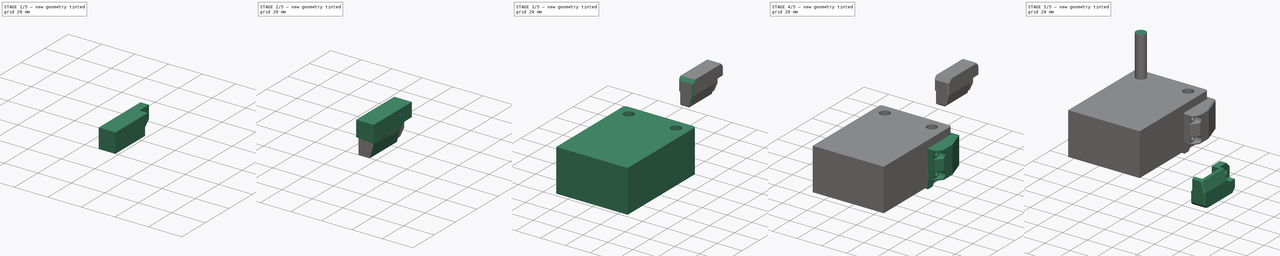
[diagram: build sequence overview — one tinted view per stage of 5, left to right]
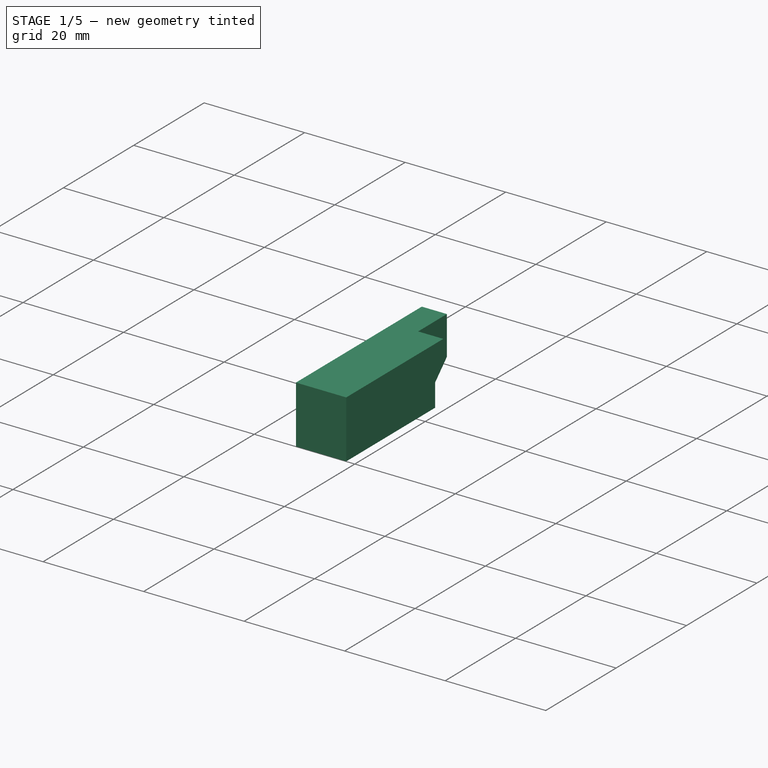
[diagram: stage 1 of 5 — iso view after this stage's code; geometry added in this stage tinted green]
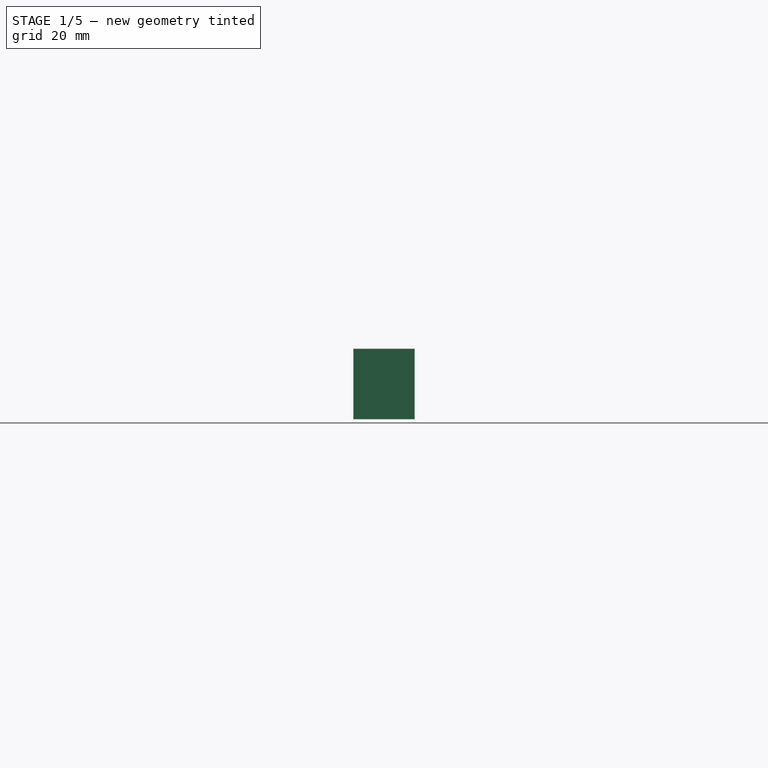
[diagram: stage 1 of 5 — front view after this stage's code; geometry added in this stage tinted green]
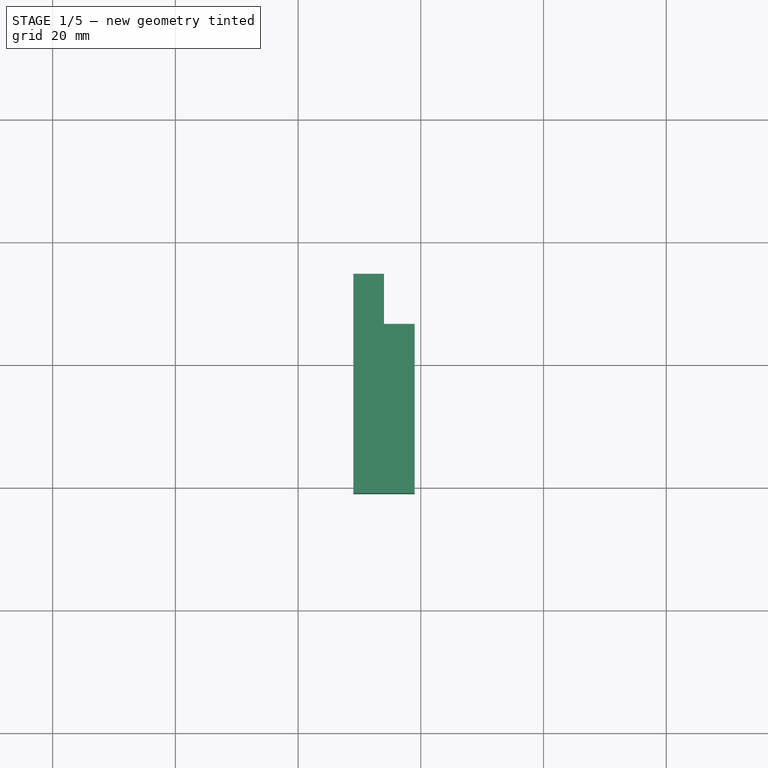
[diagram: stage 1 of 5 — top view after this stage's code; geometry added in this stage tinted green]
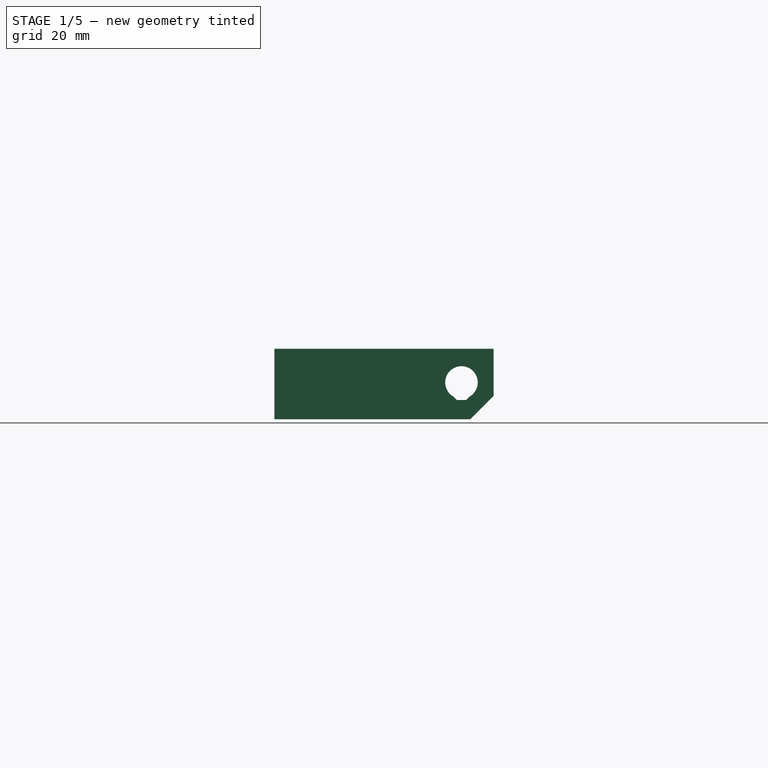
[diagram: stage 1 of 5 — right view after this stage's code; geometry added in this stage tinted green]
FCSTD DOCUMENT  (FreeCAD 0.18R16158 (Git))
Label: zendstop_3018pro
License: All rights reserved
LicenseURL: http://en.wikipedia.org/wiki/All_rights_reserved
objects: Sketcher::SketchObject×31, PartDesign::Pocket×17, PartDesign::Chamfer×15, PartDesign::Pad×13, PartDesign::ShapeBinder×10, PartDesign::Body×5, App::Part×5, PartDesign::Mirrored×4, Part::Feature×4, Part::Mirroring×2, PartDesign::Plane×2, PartDesign::Revolution×1, PartDesign::LinearPattern×1, PartDesign::Fillet×1
note: 137 computed .brp shape members not serialized (recipe doc carries the construction recipe); baked Part::Feature solids carry a one-line shape summary decoded from their .brp

FEATURE [Sketcher::SketchObject] Sketch
  MapMode = 5
  Placement = pos=(0,0,0) rot=(0.57735,0.57735,0.57735;2.0944rad)
  Support = -> [YZ_Plane001]
  sketch-geometry (13):
    g0: Circle CenterX=0 CenterY=36 CenterZ=0 NormalX=0 NormalY=0 NormalZ=1 AngleXU=0 Radius=9.5
    g1: Circle CenterX=0 CenterY=-36 CenterZ=0 NormalX=0 NormalY=0 NormalZ=1 AngleXU=0 Radius=9.5
    g2: LineSegment StartX=13.5 StartY=37.625 StartZ=0 EndX=13.5 EndY=-37.625 EndZ=0
    g3: LineSegment StartX=-13.5 StartY=-39.625 StartZ=0 EndX=-13.5 EndY=39.625 EndZ=0
    g4: LineSegment StartX=1.5 StartY=49.625 StartZ=0 EndX=-52.5 EndY=49.625 EndZ=0
    g5: LineSegment StartX=-52.5 StartY=49.625 StartZ=0 EndX=-52.5 EndY=39.625 EndZ=0
    g6: LineSegment StartX=-52.5 StartY=39.625 StartZ=0 EndX=-13.5 EndY=39.625 EndZ=0
    g7: LineSegment StartX=1.5 StartY=-49.625 StartZ=0 EndX=-38.5 EndY=-49.625 EndZ=0
    g8: LineSegment StartX=-38.5 StartY=-49.625 StartZ=0 EndX=-38.5 EndY=-39.625 EndZ=0
    g9: LineSegment StartX=-38.5 StartY=-39.625 StartZ=0 EndX=-13.5 EndY=-39.625 EndZ=0
    g10: ArcOfCircle CenterX=1.5 CenterY=37.625 CenterZ=0 NormalX=0 NormalY=0 NormalZ=1 AngleXU=0 Radius=12 StartAngle=0 EndAngle=1.5708
    g11: ArcOfCircle CenterX=1.5 CenterY=-37.625 CenterZ=0 NormalX=0 NormalY=0 NormalZ=1 AngleXU=0 Radius=12 StartAngle=4.71239 EndAngle=6.28319
    g12: LineSegment [constr] StartX=-13.5 StartY=0 StartZ=0 EndX=13.5 EndY=0 EndZ=0
  constraints (35):
    c: PointOnObject(g0,g-2)
    c: Diameter(g0) = 19
    c: Equal(g0,g1)
    c: DistanceY(g1,g0) = 72
    c: Symmetric(g0,g1,g-1)
    c: Vertical(g2)
    c: Vertical(g3)
    c: Coincident(g4,g5)
    c: Coincident(g5,g6)
    c: Horizontal(g4)
    c: Horizontal(g6)
    c: Vertical(g5)
    c: Coincident(g7,g8)
    c: Coincident(g8,g9)
    c: Horizontal(g7)
    c: Horizontal(g9)
    c: Vertical(g8)
    c: Coincident(g3,g6)
    c: Coincident(g3,g9)
    c: Tangent(g2,g10) = 1.5708
    c: Tangent(g4,g10) = -1.5708
    c: Tangent(g2,g11) = 1.5708
    c: Tangent(g7,g11) = 1.5708
    c: Radius(g10) = 12
    c: DistanceX(g3,g2) = 27
    c: Symmetric(g12,g12,g-2)
    c: PointOnObject(g12,g2)
    c: PointOnObject(g12,g-1)
    c: PointOnObject(g12,g3)
    c: DistanceY(g7,g4) = 99.25
    c: Symmetric(g4,g7,g12)
    c: DistanceY(g5,g5) = 10
    c: Equal(g5,g8)
    c: DistanceX(g6,g6) = 39
    c: DistanceX(g9,g9) = 25
FEATURE [PartDesign::Pad] Pad
  Length = 58
  Length2 = 100
  Midplane = true
  Placement = pos=(0,0,0) rot=(0.57735,0.57735,0.57735;2.0944rad)
  Profile = -> Sketch
  Refine = true
  Type = 0
FEATURE [Sketcher::SketchObject] Sketch001
  ExternalGeometry = -> [Pad]
  MapMode = 5
  Placement = pos=(1.11e-14,-1.74e-14,-39.625) rot=(0,0,-1;1.5708rad)
  Support = -> [Pad]
  sketch-geometry (4):
    g0: LineSegment StartX=13.5 StartY=26.1 StartZ=0 EndX=35.6 EndY=26.1 EndZ=0
    g1: LineSegment StartX=35.6 StartY=26.1 StartZ=0 EndX=35.6 EndY=-26.1 EndZ=0
    g2: LineSegment StartX=35.6 StartY=-26.1 StartZ=0 EndX=13.5 EndY=-26.1 EndZ=0
    g3: LineSegment StartX=13.5 StartY=-26.1 StartZ=0 EndX=13.5 EndY=26.1 EndZ=0
  constraints (11):
    c: Coincident(g0,g1)
    c: Coincident(g1,g2)
    c: Coincident(g2,g3)
    c: Coincident(g3,g0)
    c: Horizontal(g0)
    c: Horizontal(g2)
    c: Vertical(g3)
    c: DistanceY(g0,g-4) = 2.9
    c: DistanceX(g0,g-4) = 2.9
    c: PointOnObject(g0,g-6)
    c: Symmetric(g0,g1,g-1)
FEATURE [PartDesign::Pocket] Pocket
  BaseFeature = -> Pad
  Length = 7.5
  Length2 = 100
  Placement = pos=(0,0,0) rot=(0.57735,0.57735,0.57735;2.0944rad)
  Profile = -> Sketch001
  Refine = true
  Type = 0
FEATURE [Sketcher::SketchObject] Sketch002
  ExternalGeometry = -> [Pocket]
  MapMode = 5
  Placement = pos=(-1.11e-14,1.74e-14,39.625) rot=(0.707107,0.707107,0;3.14159rad)
  Support = -> [Pocket]
  sketch-geometry (4):
    g0: LineSegment StartX=-13.5 StartY=26.1 StartZ=0 EndX=-49.6 EndY=26.1 EndZ=0
    g1: LineSegment StartX=-49.6 StartY=26.1 StartZ=0 EndX=-49.6 EndY=-26.1 EndZ=0
    g2: LineSegment StartX=-49.6 StartY=-26.1 StartZ=0 EndX=-13.5 EndY=-26.1 EndZ=0
    g3: LineSegment StartX=-13.5 StartY=-26.1 StartZ=0 EndX=-13.5 EndY=26.1 EndZ=0
  constraints (11):
    c: Coincident(g0,g1)
    c: Coincident(g1,g2)
    c: Coincident(g2,g3)
    c: Coincident(g3,g0)
    c: Horizontal(g0)
    c: Horizontal(g2)
    c: Vertical(g3)
    c: PointOnObject(g0,g-6)
    c: Symmetric(g0,g1,g-1)
    c: DistanceY(g0,g-4) = 2.9
    c: DistanceX(g-4,g0) = 2.9
FEATURE [PartDesign::Pocket] Pocket001
  BaseFeature = -> Pocket
  Length = 7.5
  Length2 = 100
  Placement = pos=(0,0,0) rot=(0.57735,0.57735,0.57735;2.0944rad)
  Profile = -> Sketch002
  Refine = true
  Type = 0
FEATURE [Sketcher::SketchObject] Sketch003
  ExternalGeometry = -> [Pocket001]
  MapMode = 5
  Placement = pos=(1.39e-14,-2.18e-14,-49.625) rot=(0.707107,0.707107,0;3.14159rad)
  Support = -> [Pocket001]
  sketch-geometry (1):
    g0: Circle CenterX=-31.5 CenterY=19 CenterZ=0 NormalX=0 NormalY=0 NormalZ=1 AngleXU=0 Radius=4
  constraints (3):
    c: Diameter(g0) = 8
    c: DistanceX(g-3,g0) = 7
    c: DistanceY(g0,g-3) = 10
FEATURE [PartDesign::Pocket] Pocket002
  BaseFeature = -> Pocket001
  Length = 5
  Length2 = 100
  Placement = pos=(0,0,0) rot=(0.57735,0.57735,0.57735;2.0944rad)
  Profile = -> Sketch003
  Refine = true
  Type = 1
FEATURE [PartDesign::Mirrored] Mirrored
  BaseFeature = -> Pocket002
  MirrorPlane = -> YZ_Plane001
  Originals = -> [Pocket002]
  Placement = pos=(0,0,0) rot=(0.57735,0.57735,0.57735;2.0944rad)
  Refine = true
FEATURE [Part::Feature] Part__Feature  label="SS_5GL2_ACTUATOR"
  Placement = pos=(-11.5,7.7,0) rot=(0,0,1;0rad)
  shape: bbox 17.42 x 11.6 x 5.4 mm, 30 faces (baked)
FEATURE [Part::Feature] Part__Feature001  label="SS_5GL2_BASE"
  shape: bbox 19.8 x 15.06 x 6.4 mm, 43 faces (baked)
FEATURE [App::Part] SS_5GL2  label="top limit switch"
  Group = -> [Part__Feature,Part__Feature001]
  Origin = -> Origin004
  Placement = pos=(32.2,-33.3,46.72) rot=(-0.57735,0.57735,-0.57735;2.0944rad)
FEATURE [Part::Feature] Part__Feature002  label="SS_5GL2_ACTUATOR001"
  Placement = pos=(-11.5,7.7,0) rot=(0,0,1;0rad)
  shape: bbox 17.42 x 11.6 x 5.4 mm, 30 faces (baked)
FEATURE [Part::Feature] Part__Feature003  label="SS_5GL2_BASE001"
  shape: bbox 19.8 x 15.06 x 6.4 mm, 43 faces (baked)
FEATURE [App::Part] SS_5GL2001  label="bottom limit switch"
  Group = -> [Part__Feature002,Part__Feature003]
  Origin = -> Origin005
  Placement = pos=(32.2,-33.3,-46.72) rot=(-0.57735,0.57735,0.57735;4.18879rad)
FEATURE [Sketcher::SketchObject] Sketch006
  ExternalGeometry = -> [Mirrored]
  MapMode = 5
  Placement = pos=(29,-6.4e-15,6.4e-15) rot=(0.57735,0.57735,0.57735;2.0944rad)
  Support = -> [Mirrored]
  sketch-geometry (1):
    g0: Circle CenterX=-10.5 CenterY=45.625 CenterZ=0 NormalX=0 NormalY=0 NormalZ=1 AngleXU=0 Radius=1.975
  constraints (3):
    c: DistanceY(g0,g-4) = 4
    c: DistanceX(g0,g-3) = 24
    c: Diameter(g0) = 3.95
FEATURE [PartDesign::Pocket] Pocket003
  BaseFeature = -> Mirrored
  Length = 5
  Length2 = 100
  Placement = pos=(0,0,0) rot=(0.57735,0.57735,0.57735;2.0944rad)
  Profile = -> Sketch006
  Refine = true
  Type = 1
FEATURE [PartDesign::Mirrored] Mirrored001
  BaseFeature = -> Pocket003
  MirrorPlane = -> XY_Plane001
  Originals = -> [Pocket003]
  Placement = pos=(0,0,0) rot=(0.57735,0.57735,0.57735;2.0944rad)
  Refine = true
FEATURE [PartDesign::Body] Body  label="xz mount"
  Group = -> [Sketch,Pad,Sketch001,Pocket,Sketch002,Pocket001,Sketch003,Pocket002,Mirrored,Sketch006,Pocket003,Mirrored001]
  Origin = -> Origin001
  Tip = -> Mirrored001
FEATURE [App::Part] Part002  label="limit switches"
  Group = -> [SS_5GL2,SS_5GL2001]
  Origin = -> Origin007
FEATURE [PartDesign::ShapeBinder] ShapeBinder004
  Placement = pos=(0,0,0) rot=(0.57735,0.57735,0.57735;2.0944rad)
  Support = -> [Mirrored001]
  TraceSupport = true
FEATURE [PartDesign::ShapeBinder] ShapeBinder005
  Placement = pos=(32.2,-33.3,46.72) rot=(0.57735,-0.57735,0.57735;4.18879rad)
  Support = -> [Part__Feature001]
  TraceSupport = true
FEATURE [Sketcher::SketchObject] Sketch007
  ExternalGeometry = -> [ShapeBinder004,ShapeBinder005]
  MapMode = 5
  Placement = pos=(29,-6.4e-15,6.4e-15) rot=(0.57735,0.57735,0.57735;2.0944rad)
  Support = -> [ShapeBinder004]
  sketch-geometry (6):
    g0: LineSegment StartX=-41 StartY=51.125 StartZ=0 EndX=-5.25 EndY=51.125 EndZ=0
    g1: LineSegment StartX=-41 StartY=39.625 StartZ=0 EndX=-41 EndY=51.125 EndZ=0
    g2: LineSegment StartX=-9.07538 StartY=39.625 StartZ=0 EndX=-5.25 EndY=43.4504 EndZ=0
    g3: LineSegment StartX=-5.25 StartY=43.4504 StartZ=0 EndX=-5.25 EndY=51.125 EndZ=0
    g4: LineSegment StartX=-41 StartY=39.625 StartZ=0 EndX=-9.07538 EndY=39.625 EndZ=0
    g5: Circle [constr] CenterX=-10.5 CenterY=45.625 CenterZ=0 NormalX=0 NormalY=0 NormalZ=1 AngleXU=0 Radius=5.25
  constraints (17):
    c: Coincident(g1,g0)
    c: Horizontal(g0)
    c: Vertical(g1)
    c: DistanceY(g-3,g0) = 1.5
    c: PointOnObject(g1,g-4)
    c: DistanceX(g0,g-6) = 2.5
    c: Coincident(g3,g2)
    c: Vertical(g3)
    c: Coincident(g0,g3)
    c: Coincident(g4,g1)
    c: Horizontal(g4)
    c: Coincident(g5,g-5)
    c: Diameter(g5) = 10.5
    c: Coincident(g2,g4)
    c: Angle(g2,g4) = 2.35619
    c: Tangent(g5,g2)
    c: Tangent(g3,g5)
FEATURE [PartDesign::Pad] Pad003
  Length = 10
  Length2 = 100
  Placement = pos=(0,0,0) rot=(0.57735,0.57735,0.57735;2.0944rad)
  Profile = -> Sketch007
  Refine = true
  Type = 0
FEATURE [PartDesign::ShapeBinder] ShapeBinder006
  Placement = pos=(32.2,-33.3,46.72) rot=(0.57735,-0.57735,0.57735;4.18879rad)
  Support = -> [Part__Feature001]
  TraceSupport = true
FEATURE [Sketcher::SketchObject] Sketch008
  ExternalGeometry = -> [ShapeBinder004,Pad003]
  MapMode = 5
  Placement = pos=(39,-4.72e-14,2.61e-14) rot=(0.57735,0.57735,0.57735;2.0944rad)
  Support = -> [Pad003]
  sketch-geometry (8):
    g0: ArcOfCircle CenterX=-10.5 CenterY=45.625 CenterZ=0 NormalX=0 NormalY=0 NormalZ=1 AngleXU=0 Radius=5.25 StartAngle=2.3562 EndAngle=3.14159
    g1: LineSegment StartX=-15.75 StartY=45.625 StartZ=0 EndX=-15.75 EndY=39.625 EndZ=0
    g2: LineSegment StartX=-15.75 StartY=39.625 StartZ=0 EndX=-5.25 EndY=39.625 EndZ=0
    g3: LineSegment StartX=-5.25 StartY=39.625 StartZ=0 EndX=-5.25 EndY=51.125 EndZ=0
    g4: LineSegment StartX=-14.2123 StartY=49.3373 StartZ=0 EndX=-13.4246 EndY=50.125 EndZ=0
    g5: LineSegment StartX=-13.4246 StartY=51.125 StartZ=0 EndX=-5.25 EndY=51.125 EndZ=0
    g6: LineSegment [constr] StartX=-10.5 StartY=45.625 StartZ=0 EndX=-15.75 EndY=45.625 EndZ=0
    g7: LineSegment StartX=-13.4246 StartY=50.125 StartZ=0 EndX=-13.4246 EndY=51.125 EndZ=0
  constraints (22):
    c: Coincident(g0,g-3)
    c: Diameter(g0) = 10.5
    c: PointOnObject(g1,g-4)
    c: Vertical(g1)
    c: Coincident(g2,g1)
    c: Horizontal(g2)
    c: Coincident(g3,g2)
    c: Vertical(g3)
    c: Coincident(g1,g0)
    c: Tangent(g4,g0)
    c: Horizontal(g5)
    c: Coincident(g0,g4)
    c: Coincident(g5,g3)
    c: Coincident(g3,g-5)
    c: Angle(g4,g5) = 2.35619
    c: Coincident(g6,g0)
    c: Coincident(g6,g0)
    c: Horizontal(g6)
    c: Vertical(g7)
    c: Coincident(g4,g7)
    c: Coincident(g5,g7)
    c: DistanceY(g7,g7) = 1
FEATURE [PartDesign::Pocket] Pocket004
  BaseFeature = -> Pad003
  Length = 0
  Length2 = 100
  Offset = -5
  Placement = pos=(0,0,0) rot=(0.57735,0.57735,0.57735;2.0944rad)
  Profile = -> Sketch008
  Refine = true
  Type = 3
  UpToFace = -> Pad003 [Face6]
FEATURE [Sketcher::SketchObject] Sketch009
  ExternalGeometry = -> [ShapeBinder004]
  MapMode = 5
  Placement = pos=(34,-4.11e-14,2.65e-14) rot=(0.57735,0.57735,0.57735;2.0944rad)
  Support = -> [Pocket004]
  sketch-geometry (1):
    g0: Circle CenterX=-10.5 CenterY=45.625 CenterZ=0 NormalX=0 NormalY=0 NormalZ=1 AngleXU=0 Radius=2.65
  constraints (2):
    c: Coincident(g0,g-3)
    c: Diameter(g0) = 5.3
FEATURE [PartDesign::Pocket] Pocket005
  BaseFeature = -> Pocket004
  Length = 5
  Length2 = 100
  Placement = pos=(0,0,0) rot=(0.57735,0.57735,0.57735;2.0944rad)
  Profile = -> Sketch009
  Refine = true
  Type = 1
FEATURE [Sketcher::SketchObject] Sketch010
  ExternalGeometry = -> [Pocket005]
  MapMode = 5
  Placement = pos=(34,-4.11e-14,2.65e-14) rot=(0.57735,0.57735,0.57735;2.0944rad)
  Support = -> [Pocket005]
  sketch-geometry (5):
    g0: LineSegment StartX=-11.825 StartY=43.33 StartZ=0 EndX=-11.269 EndY=42.774 EndZ=0
    g1: LineSegment StartX=-11.269 StartY=42.774 StartZ=0 EndX=-9.73103 EndY=42.774 EndZ=0
    g2: LineSegment StartX=-9.73103 StartY=42.774 StartZ=0 EndX=-9.175 EndY=43.33 EndZ=0
    g3: LineSegment StartX=-9.175 StartY=43.33 StartZ=0 EndX=-11.825 EndY=43.33 EndZ=0
    g4: LineSegment [constr] StartX=-11.47 StartY=42.975 StartZ=0 EndX=-9.53003 EndY=42.975 EndZ=0
  constraints (16):
    c: Coincident(g1,g0)
    c: Coincident(g2,g1)
    c: PointOnObject(g2,g-3)
    c: Coincident(g3,g2)
    c: Coincident(g3,g0)
    c: PointOnObject(g4,g0)
    c: PointOnObject(g4,g2)
    c: Horizontal(g4)
    c: Horizontal(g3)
    c: PointOnObject(g0,g-3)
    c: Horizontal(g1)
    c: Angle(g2,g4) = 2.35619
    c: Angle(g4,g0) = 2.35619
    c: DistanceX(g3,g3) = 2.65
    c: Tangent(g4,g-3)
    c: DistanceY(g1,g4) = 0.201
FEATURE [PartDesign::Pocket] Pocket006
  BaseFeature = -> Pocket005
  Length = 5
  Length2 = 100
  Placement = pos=(0,0,0) rot=(0.57735,0.57735,0.57735;2.0944rad)
  Profile = -> Sketch010
  Refine = true
  Type = 1
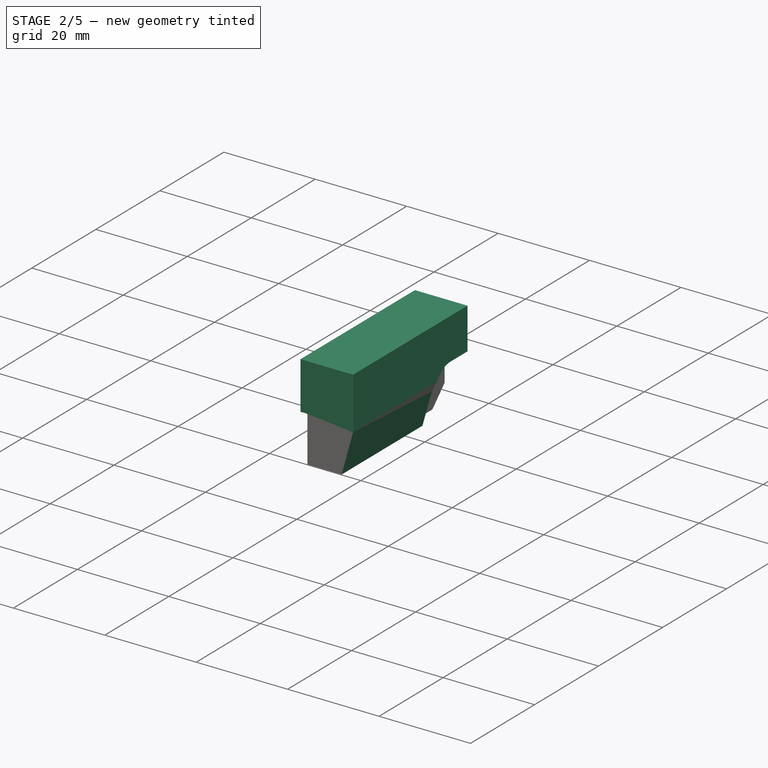
[diagram: stage 2 of 5 — iso view after this stage's code; geometry added in this stage tinted green]
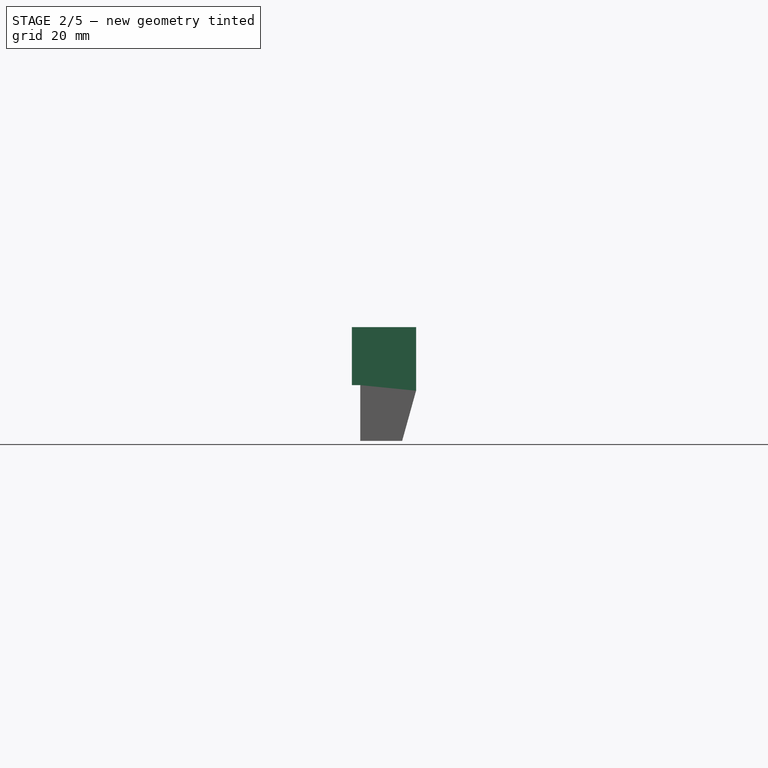
[diagram: stage 2 of 5 — front view after this stage's code; geometry added in this stage tinted green]
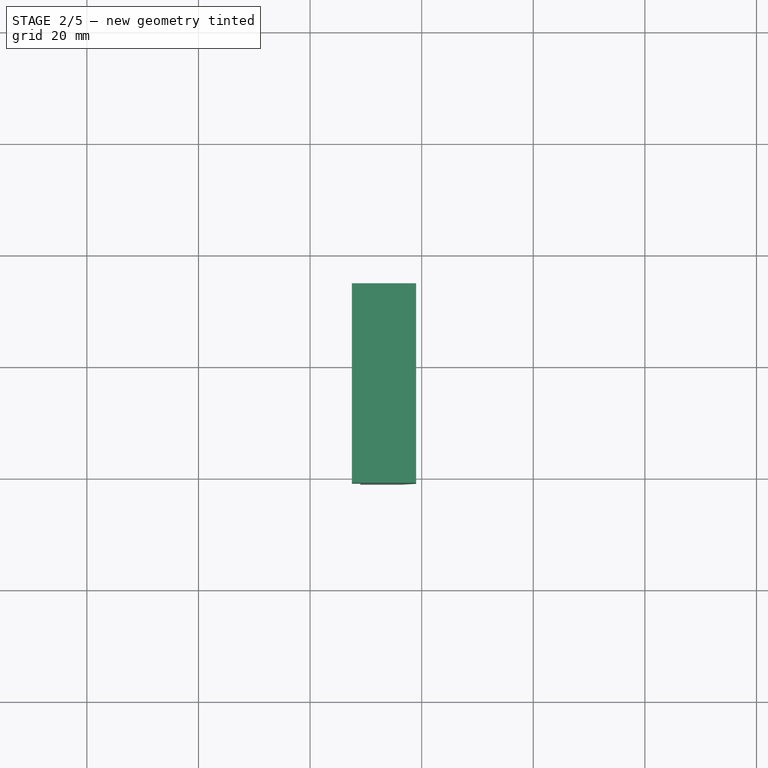
[diagram: stage 2 of 5 — top view after this stage's code; geometry added in this stage tinted green]
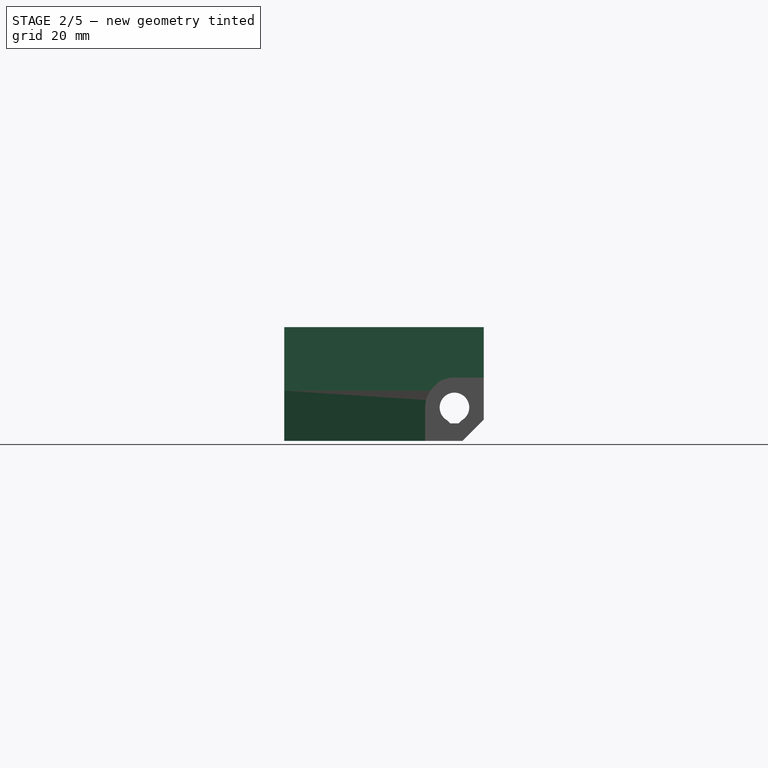
[diagram: stage 2 of 5 — right view after this stage's code; geometry added in this stage tinted green]
FEATURE [Sketcher::SketchObject] Sketch011
  ExternalGeometry = -> [ShapeBinder006,Pocket006]
  MapMode = 5
  Placement = pos=(29,-3.51e-14,1.94e-14) rot=(-0.57735,-0.57735,0.57735;2.0944rad)
  Support = -> [Pocket006]
  sketch-geometry (4):
    g0: LineSegment StartX=-38.6 StartY=-39.625 StartZ=0 EndX=-18.6 EndY=-39.625 EndZ=0
    g1: LineSegment StartX=-18.6 StartY=-39.625 StartZ=0 EndX=-18.6 EndY=-51.125 EndZ=0
    g2: LineSegment StartX=-18.6 StartY=-51.125 StartZ=0 EndX=-38.6 EndY=-51.125 EndZ=0
    g3: LineSegment StartX=-38.6 StartY=-51.125 StartZ=0 EndX=-38.6 EndY=-39.625 EndZ=0
  constraints (12):
    c: Coincident(g0,g1)
    c: Coincident(g1,g2)
    c: Coincident(g2,g3)
    c: Coincident(g3,g0)
    c: Horizontal(g0)
    c: Horizontal(g2)
    c: Vertical(g1)
    c: Vertical(g3)
    c: PointOnObject(g0,g-6)
    c: PointOnObject(g1,g-5)
    c: DistanceX(g-3,g0) = 0.1
    c: DistanceX(g0,g-4) = 0.1
FEATURE [PartDesign::Pocket] Pocket007
  BaseFeature = -> Pocket006
  Length = 6.4
  Length2 = 100
  Placement = pos=(0,0,0) rot=(0.57735,0.57735,0.57735;2.0944rad)
  Profile = -> Sketch011
  Refine = true
  Type = 0
FEATURE [PartDesign::ShapeBinder] ShapeBinder007
  Placement = pos=(0,0,0) rot=(0.57735,0.57735,0.57735;2.0944rad)
  Support = -> [Mirrored001]
  TraceSupport = true
FEATURE [PartDesign::Plane] DatumPlane001
  AttachmentOffset = pos=(0,0,-2.9) rot=(0,0,1;0rad)
  Length = 60.998
  MapMode = 5
  Placement = pos=(-1.31e-14,2.06e-14,46.725) rot=(0,0,-1;1.5708rad)
  ResizeMode = 0
  Support = -> [ShapeBinder007]
  Width = 58.998
FEATURE [Sketcher::SketchObject] Sketch012
  ExternalGeometry = -> [Pocket007]
  MapMode = 5
  Placement = pos=(-1.31e-14,2.06e-14,46.725) rot=(0,0,-1;1.5708rad)
  Support = -> [DatumPlane001]
  sketch-geometry (5):
    g0: LineSegment StartX=23.8 StartY=35.4 StartZ=0 EndX=23.8 EndY=34.85 EndZ=0
    g1: LineSegment StartX=23.8 StartY=34.85 StartZ=0 EndX=24.3 EndY=34.85 EndZ=0
    g2: LineSegment StartX=24.3 StartY=34.85 StartZ=0 EndX=24.85 EndY=35.4 EndZ=0
    g3: LineSegment StartX=24.85 StartY=35.4 StartZ=0 EndX=23.8 EndY=35.4 EndZ=0
    g4: LineSegment [constr] StartX=23.8 StartY=35.4 StartZ=0 EndX=23.8 EndY=34.85 EndZ=0
  constraints (14):
    c: PointOnObject(g0,g-3)
    c: Vertical(g0)
    c: Coincident(g1,g0)
    c: Horizontal(g1)
    c: Coincident(g2,g1)
    c: PointOnObject(g2,g-3)
    c: Coincident(g3,g2)
    c: Coincident(g3,g0)
    c: DistanceX(g3,g3) = 1.05
    c: DistanceX(g1,g1) = 0.5
    c: Angle(g3,g2) = 0.785398
    c: DistanceX(g-3,g0) = 5.2
    c: Coincident(g4,g0)
    c: Coincident(g4,g0)
FEATURE [PartDesign::Revolution] Revolution
  Angle = 360
  Axis = (-0.55,-2e-16,-7e-16)
  Base = (35.4,-23.8,46.725)
  BaseFeature = -> Pocket007
  Placement = pos=(0,0,0) rot=(0.57735,0.57735,0.57735;2.0944rad)
  Profile = -> Sketch012
  ReferenceAxis = -> Sketch012 [Axis0]
  Refine = true
FEATURE [PartDesign::LinearPattern] LinearPattern
  BaseFeature = -> Revolution
  Direction = -> Sketch012 [H_Axis]
  Length = 9.5
  Occurrences = 2
  Originals = -> [Revolution]
  Placement = pos=(0,0,0) rot=(0.57735,0.57735,0.57735;2.0944rad)
  Refine = true
FEATURE [Sketcher::SketchObject] Sketch013
  ExternalGeometry = -> [ShapeBinder004,LinearPattern]
  MapMode = 5
  Placement = pos=(29,-3.51e-14,1.94e-14) rot=(-0.57735,-0.57735,0.57735;2.0944rad)
  Support = -> [LinearPattern]
  sketch-geometry (4):
    g0: LineSegment StartX=-5.25 StartY=-51.125 StartZ=0 EndX=-41 EndY=-51.125 EndZ=0
    g1: LineSegment StartX=-41 StartY=-51.125 StartZ=0 EndX=-41 EndY=-49.625 EndZ=0
    g2: LineSegment StartX=-41 StartY=-49.625 StartZ=0 EndX=-5.25 EndY=-49.625 EndZ=0
    g3: LineSegment StartX=-5.25 StartY=-49.625 StartZ=0 EndX=-5.25 EndY=-51.125 EndZ=0
  constraints (10):
    c: Coincident(g1,g2)
    c: Coincident(g2,g3)
    c: Coincident(g3,g0)
    c: Horizontal(g2)
    c: Vertical(g1)
    c: Vertical(g3)
    c: Coincident(g0,g-5)
    c: PointOnObject(g1,g-3)
    c: Coincident(g0,g1)
    c: Coincident(g0,g-6)
FEATURE [PartDesign::Pad] Pad004
  BaseFeature = -> LinearPattern
  Length = 1.5
  Length2 = 100
  Placement = pos=(0,0,0) rot=(0.57735,0.57735,0.57735;2.0944rad)
  Profile = -> Sketch013
  Refine = true
  Type = 0
FEATURE [Sketcher::SketchObject] Sketch014
  ExternalGeometry = -> [Pad004]
  MapMode = 5
  Placement = pos=(-6.07e-14,-41,2e-15) rot=(-0.57735,-0.57735,0.57735;4.18879rad)
  Support = -> [Pad004]
  sketch-geometry (3):
    g0: LineSegment StartX=-39.625 StartY=36.5 StartZ=0 EndX=-48.625 EndY=39 EndZ=0
    g1: LineSegment StartX=-48.625 StartY=39 StartZ=0 EndX=-39.625 EndY=39 EndZ=0
    g2: LineSegment StartX=-39.625 StartY=39 StartZ=0 EndX=-39.625 EndY=36.5 EndZ=0
  constraints (8):
    c: PointOnObject(g0,g-4)
    c: Coincident(g1,g0)
    c: Coincident(g1,g-4)
    c: Coincident(g2,g1)
    c: Coincident(g2,g0)
    c: PointOnObject(g0,g-3)
    c: DistanceY(g2,g2) = 2.5
    c: DistanceX(g-4,g0) = 2.5
FEATURE [PartDesign::Pocket] Pocket008
  BaseFeature = -> Pad004
  Length = 5
  Length2 = 100
  Placement = pos=(0,0,0) rot=(0.57735,0.57735,0.57735;2.0944rad)
  Profile = -> Sketch014
  Refine = true
  Type = 1
FEATURE [Sketcher::SketchObject] Sketch023
  ExternalGeometry = -> [Pocket008]
  MapMode = 5
  Placement = pos=(-1.825e-13,-1.07e-14,51.125) rot=(0,0,-1;1.5708rad)
  Support = -> [Pocket008]
  sketch-geometry (6):
    g0: LineSegment StartX=5.25 StartY=34 StartZ=0 EndX=13.4246 EndY=34 EndZ=0
    g1: LineSegment StartX=13.4246 StartY=34 StartZ=0 EndX=13.4246 EndY=39 EndZ=0
    g2: LineSegment StartX=13.4246 StartY=39 StartZ=0 EndX=41 EndY=39 EndZ=0
    g3: LineSegment StartX=41 StartY=39 StartZ=0 EndX=41 EndY=27.5 EndZ=0
    g4: LineSegment StartX=41 StartY=27.5 StartZ=0 EndX=5.25 EndY=27.5 EndZ=0
    g5: LineSegment StartX=5.25 StartY=27.5 StartZ=0 EndX=5.25 EndY=34 EndZ=0
  constraints (12):
    c: Coincident(g1,g0)
    c: Coincident(g2,g1)
    c: Coincident(g3,g2)
    c: Coincident(g4,g3)
    c: Coincident(g5,g4)
    c: Coincident(g5,g0)
    c: Coincident(g0,g-8)
    c: Coincident(g0,g-8)
    c: Coincident(g1,g-4)
    c: Coincident(g2,g-5)
    c: Coincident(g3,g-6)
    c: Coincident(g4,g-7)
FEATURE [PartDesign::Pad] Pad009
  BaseFeature = -> Pocket008
  Length = 8.9
  Length2 = 100
  Placement = pos=(0,0,0) rot=(0.57735,0.57735,0.57735;2.0944rad)
  Profile = -> Sketch023
  Refine = true
  Type = 0
FEATURE [Sketcher::SketchObject] Sketch024
  ExternalGeometry = -> [Pad009,ShapeBinder006]
  MapMode = 5
  Placement = pos=(27.5,-3.55e-14,8.44e-14) rot=(0.57735,0.57735,-0.57735;4.18879rad)
  Support = -> [Pad009]
  sketch-geometry (4):
    g0: LineSegment StartX=-38.6 StartY=-49.625 StartZ=0 EndX=-18.6 EndY=-49.625 EndZ=0
    g1: LineSegment StartX=-18.6 StartY=-49.625 StartZ=0 EndX=-18.6 EndY=-56.12 EndZ=0
    g2: LineSegment StartX=-18.6 StartY=-56.12 StartZ=0 EndX=-38.6 EndY=-56.12 EndZ=0
    g3: LineSegment StartX=-38.6 StartY=-56.12 StartZ=0 EndX=-38.6 EndY=-49.625 EndZ=0
  constraints (10):
    c: Coincident(g0,g1)
    c: Coincident(g1,g2)
    c: Coincident(g2,g3)
    c: Coincident(g3,g0)
    c: Horizontal(g2)
    c: Vertical(g1)
    c: Vertical(g3)
    c: Coincident(g0,g-3)
    c: Coincident(g0,g-4)
    c: DistanceY(g1,g-5) = 6.5
FEATURE [PartDesign::Pocket] Pocket013
  BaseFeature = -> Pad009
  Length = 0
  Length2 = 100
  Placement = pos=(0,0,0) rot=(0.57735,0.57735,0.57735;2.0944rad)
  Profile = -> Sketch024
  Refine = true
  Type = 3
  UpToFace = -> Pad009 [Face4]
FEATURE [Sketcher::SketchObject] Sketch025
  ExternalGeometry = -> [Pad009]
  MapMode = 5
  Placement = pos=(34,-6.8e-14,5.78e-14) rot=(0.57735,0.57735,0.57735;2.0944rad)
  Support = -> [Pad009]
  sketch-geometry (6):
    g0: ArcOfCircle CenterX=-10.5 CenterY=45.625 CenterZ=0 NormalX=0 NormalY=0 NormalZ=1 AngleXU=0 Radius=5.36688 StartAngle=1.5708 EndAngle=2.14711
    g1: LineSegment StartX=-10.5 StartY=50.9919 StartZ=0 EndX=-5.25 EndY=50.9919 EndZ=0
    g2: LineSegment StartX=-5.25 StartY=50.9919 StartZ=0 EndX=-5.25 EndY=60.025 EndZ=0
    g3: LineSegment StartX=-5.25 StartY=60.025 StartZ=0 EndX=-13.4246 EndY=60.025 EndZ=0
    g4: LineSegment StartX=-13.4246 StartY=60.025 StartZ=0 EndX=-13.4246 EndY=50.125 EndZ=0
    g5: LineSegment [constr] StartX=-10.5 StartY=50.9919 StartZ=0 EndX=-10.5 EndY=45.625 EndZ=0
  constraints (14):
    c: Coincident(g0,g-3)
    c: Coincident(g0,g-6)
    c: Coincident(g1,g0)
    c: Coincident(g2,g1)
    c: Coincident(g3,g2)
    c: Coincident(g4,g3)
    c: Coincident(g4,g0)
    c: Coincident(g3,g-6)
    c: Coincident(g2,g-5)
    c: PointOnObject(g1,g-4)
    c: Horizontal(g1)
    c: Coincident(g5,g0)
    c: Coincident(g5,g0)
    c: Vertical(g5)
FEATURE [PartDesign::Pad] Pad010
  BaseFeature = -> Pocket013
  Length = 10
  Length2 = 100
  Placement = pos=(0,0,0) rot=(0.57735,0.57735,0.57735;2.0944rad)
  Profile = -> Sketch025
  Refine = true
  Type = 3
  UpToFace = -> Pocket013 [Face28]
FEATURE [Sketcher::SketchObject] Sketch026
  ExternalGeometry = -> [Pad010]
  MapMode = 5
  Placement = pos=(5.7e-15,-5.25,-4.6e-15) rot=(-0.57735,-0.57735,-0.57735;2.0944rad)
  Support = -> [Pad010]
  sketch-geometry (9):
    g0: ArcOfCircle CenterX=50.75 CenterY=31.125 CenterZ=0 NormalX=0 NormalY=0 NormalZ=1 AngleXU=0 Radius=1.125 StartAngle=1.5708 EndAngle=4.71239
    g1: ArcOfCircle CenterX=52 CenterY=31.125 CenterZ=0 NormalX=0 NormalY=0 NormalZ=1 AngleXU=0 Radius=1.125 StartAngle=4.71239 EndAngle=7.85398
    g2: LineSegment StartX=50.75 StartY=30 StartZ=0 EndX=52 EndY=30 EndZ=0
    g3: LineSegment StartX=50.75 StartY=32.25 StartZ=0 EndX=52 EndY=32.25 EndZ=0
    g4: LineSegment [constr] StartX=49.625 StartY=32.25 StartZ=0 EndX=53.125 EndY=32.25 EndZ=0
    g5: LineSegment [constr] StartX=53.125 StartY=32.25 StartZ=0 EndX=53.125 EndY=30 EndZ=0
    g6: LineSegment [constr] StartX=53.125 StartY=30 StartZ=0 EndX=49.625 EndY=30 EndZ=0
    g7: LineSegment [constr] StartX=49.625 StartY=30 StartZ=0 EndX=49.625 EndY=32.25 EndZ=0
    g8: LineSegment [constr] StartX=49.625 StartY=30 StartZ=0 EndX=49.625 EndY=27.5 EndZ=0
  constraints (24):
    c: Tangent(g0,g3) = 1.5708
    c: Tangent(g0,g2) = -1.5708
    c: Tangent(g2,g1) = -1.5708
    c: Tangent(g3,g1) = 1.5708
    c: Horizontal(g2)
    c: Equal(g0,g1)
    c: Coincident(g4,g5)
    c: Coincident(g5,g6)
    c: Coincident(g6,g7)
    c: Coincident(g7,g4)
    c: Horizontal(g4)
    c: Horizontal(g6)
    c: Vertical(g5)
    c: Vertical(g7)
    c: Tangent(g5,g1)
    c: Tangent(g0,g7)
    c: PointOnObject(g1,g4)
    c: PointOnObject(g1,g6)
    c: DistanceY(g5,g5) = 2.25
    c: DistanceX(g4,g4) = 3.5
    c: DistanceY(g-4,g5) = 2.5
    c: Coincident(g8,g6)
    c: Coincident(g8,g-4)
    c: Vertical(g8)
FEATURE [PartDesign::Pocket] Pocket014
  BaseFeature = -> Pad010
  Length = 5
  Length2 = 100
  Placement = pos=(0,0,0) rot=(0.57735,0.57735,0.57735;2.0944rad)
  Profile = -> Sketch026
  Refine = true
  Type = 2
FEATURE [Sketcher::SketchObject] Sketch027
  ExternalGeometry = -> [Pocket014]
  MapMode = 5
  Placement = pos=(-2.42e-14,-18.6,3.9e-15) rot=(-0.57735,-0.57735,0.57735;4.18879rad)
  Support = -> [Pocket014]
  sketch-geometry (4):
    g0: ArcOfCircle CenterX=-52 CenterY=31.125 CenterZ=0 NormalX=0 NormalY=0 NormalZ=1 AngleXU=0 Radius=1.125 StartAngle=4.71239 EndAngle=7.85398
    g1: ArcOfCircle CenterX=-54.995 CenterY=31.125 CenterZ=0 NormalX=0 NormalY=0 NormalZ=1 AngleXU=0 Radius=1.125 StartAngle=1.5708 EndAngle=4.71239
    g2: LineSegment StartX=-52 StartY=32.25 StartZ=0 EndX=-54.995 EndY=32.25 EndZ=0
    g3: LineSegment StartX=-52 StartY=30 StartZ=0 EndX=-54.995 EndY=30 EndZ=0
  constraints (8):
    c: Tangent(g0,g3) = 1.5708
    c: Tangent(g0,g2) = -1.5708
    c: Tangent(g2,g1) = -1.5708
    c: Tangent(g3,g1) = 1.5708
    c: Equal(g0,g1)
    c: Coincident(g0,g-3)
    c: Coincident(g0,g-3)
    c: Tangent(g1,g-4)
FEATURE [PartDesign::Pocket] Pocket015
  BaseFeature = -> Pocket014
  Length = 3
  Length2 = 100
  Placement = pos=(0,0,0) rot=(0.57735,0.57735,0.57735;2.0944rad)
  Profile = -> Sketch027
  Refine = true
  Type = 0
FEATURE [Sketcher::SketchObject] Sketch028
  ExternalGeometry = -> [Pocket015]
  MapMode = 5
  Placement = pos=(4.6e-15,-5.25,-4.6e-15) rot=(-0.57735,-0.57735,-0.57735;2.0944rad)
  Support = -> [Pocket015]
  sketch-geometry (6):
    g0: LineSegment StartX=49.7422 StartY=30.625 StartZ=0 EndX=49.575 EndY=30.7922 EndZ=0
    g1: LineSegment StartX=49.575 StartY=30.7922 StartZ=0 EndX=49.575 EndY=31.4578 EndZ=0
    g2: LineSegment StartX=49.575 StartY=31.4578 StartZ=0 EndX=49.7422 EndY=31.625 EndZ=0
    g3: LineSegment StartX=49.7422 StartY=31.625 StartZ=0 EndX=49.7422 EndY=30.625 EndZ=0
    g4: LineSegment [constr] StartX=49.625 StartY=31.5078 StartZ=0 EndX=49.625 EndY=30.7422 EndZ=0
    g5: LineSegment [constr] StartX=50.75 StartY=31.125 StartZ=0 EndX=49.575 EndY=31.125 EndZ=0
  constraints (18):
    c: PointOnObject(g0,g-3)
    c: Coincident(g1,g0)
    c: Vertical(g1)
    c: Coincident(g2,g1)
    c: PointOnObject(g2,g-3)
    c: Coincident(g3,g2)
    c: Coincident(g3,g0)
    c: Vertical(g3)
    c: PointOnObject(g4,g2)
    c: PointOnObject(g4,g0)
    c: Vertical(g4)
    c: Tangent(g4,g-3)
    c: Coincident(g5,g-3)
    c: Horizontal(g5)
    c: Symmetric(g1,g0,g5)
    c: DistanceY(g3,g3) = 1
    c: Angle(g2,g3) = 0.785398
    c: DistanceX(g1,g4) = 0.05
FEATURE [PartDesign::Pocket] Pocket016
  BaseFeature = -> Pocket015
  Length = 5
  Length2 = 100
  Placement = pos=(0,0,0) rot=(0.57735,0.57735,0.57735;2.0944rad)
  Profile = -> Sketch028
  Refine = true
  Type = 2
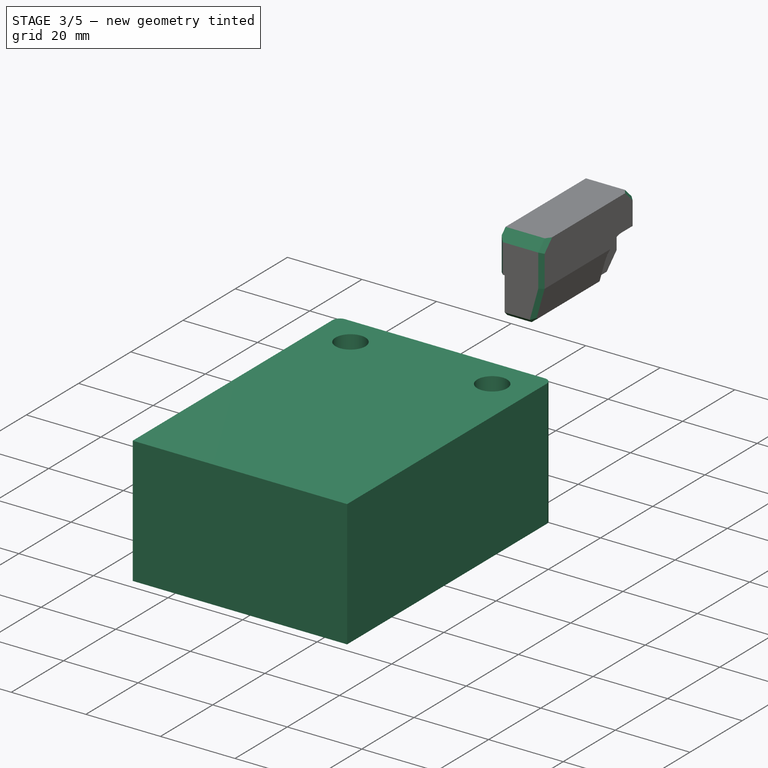
[diagram: stage 3 of 5 — iso view after this stage's code; geometry added in this stage tinted green]
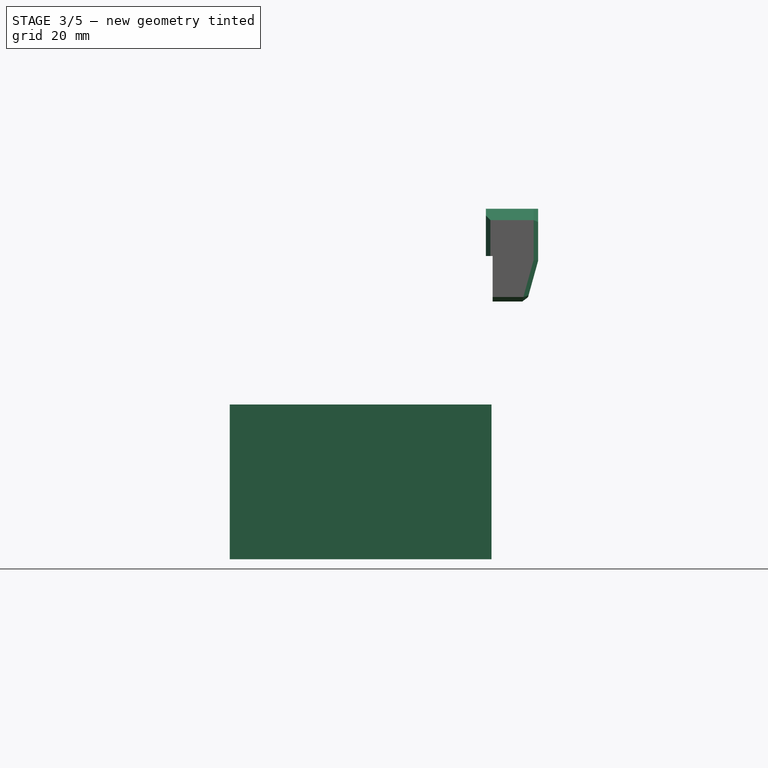
[diagram: stage 3 of 5 — front view after this stage's code; geometry added in this stage tinted green]
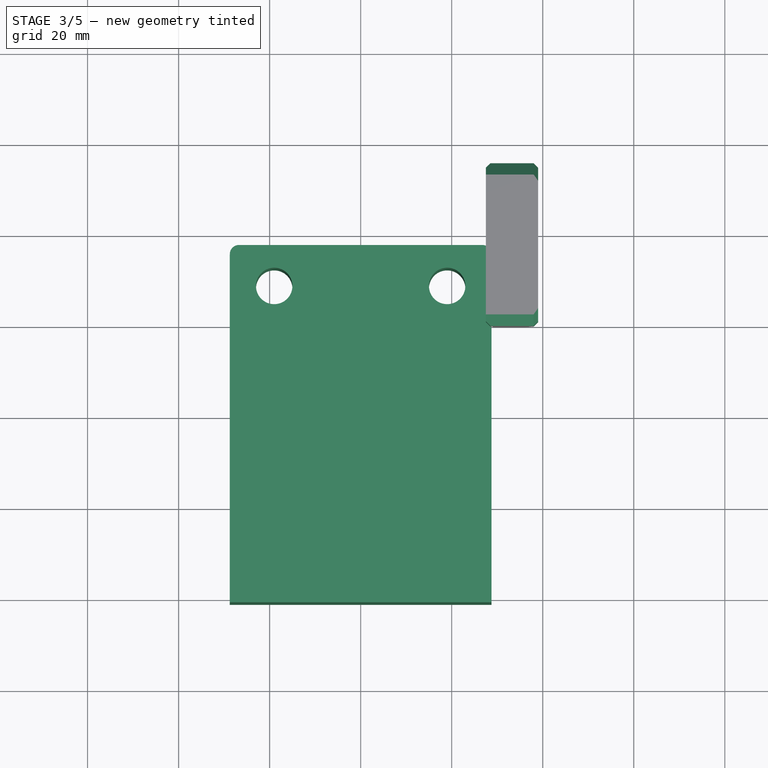
[diagram: stage 3 of 5 — top view after this stage's code; geometry added in this stage tinted green]
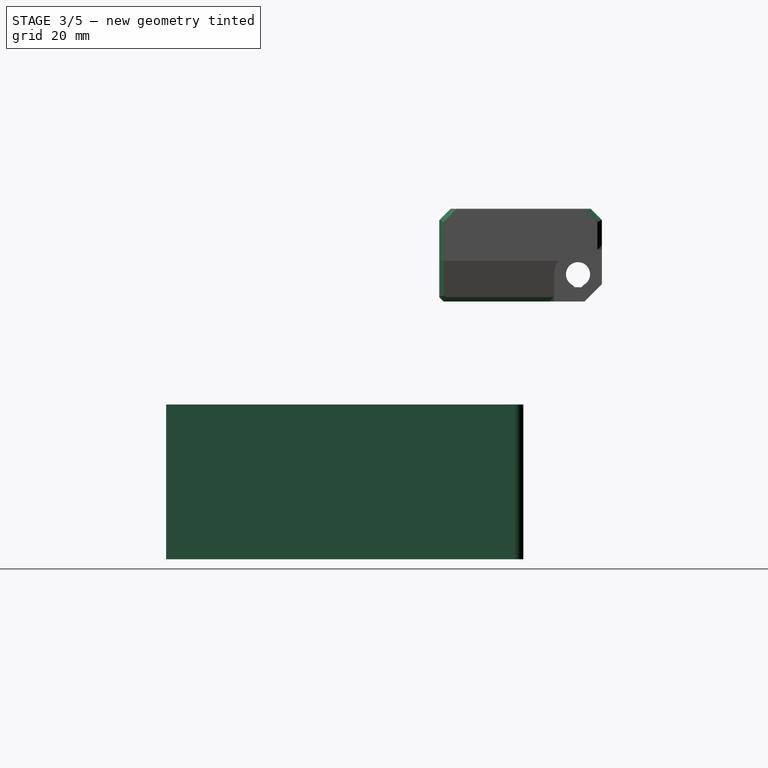
[diagram: stage 3 of 5 — right view after this stage's code; geometry added in this stage tinted green]
FEATURE [PartDesign::ShapeBinder] ShapeBinder002
  Placement = pos=(0,0,0) rot=(0.57735,0.57735,0.57735;2.0944rad)
  Support = -> [Mirrored]
  TraceSupport = true
FEATURE [PartDesign::Plane] DatumPlane
  AttachmentOffset = pos=(0,0,-49.625) rot=(0,0,1;0rad)
  Length = 126.978
  MapMode = 5
  Placement = pos=(0,0,1.42e-14) rot=(0,0,-1;1.5708rad)
  ResizeMode = 0
  Support = -> [ShapeBinder002]
  Width = 73.4781
FEATURE [PartDesign::ShapeBinder] ShapeBinder003
  Placement = pos=(0,0,0) rot=(0.57735,0.57735,0.57735;2.0944rad)
  Support = -> [Mirrored]
  TraceSupport = true
FEATURE [Sketcher::SketchObject] Sketch005
  ExternalGeometry = -> [ShapeBinder003]
  MapMode = 5
  Placement = pos=(0,0,1.42e-14) rot=(0,0,-1;1.5708rad)
  Support = -> [DatumPlane]
  sketch-geometry (6):
    g0: LineSegment StartX=22.5 StartY=28.75 StartZ=0 EndX=101 EndY=28.75 EndZ=0
    g1: LineSegment StartX=101 StartY=28.75 StartZ=0 EndX=101 EndY=-28.75 EndZ=0
    g2: LineSegment StartX=101 StartY=-28.75 StartZ=0 EndX=22.5 EndY=-28.75 EndZ=0
    g3: LineSegment StartX=22.5 StartY=-28.75 StartZ=0 EndX=22.5 EndY=28.75 EndZ=0
    g4: Circle CenterX=31.5 CenterY=19 CenterZ=0 NormalX=0 NormalY=0 NormalZ=1 AngleXU=0 Radius=4
    g5: Circle CenterX=31.5 CenterY=-19 CenterZ=0 NormalX=0 NormalY=0 NormalZ=1 AngleXU=0 Radius=4
  constraints (15):
    c: Coincident(g0,g1)
    c: Coincident(g1,g2)
    c: Coincident(g2,g3)
    c: Coincident(g3,g0)
    c: Horizontal(g0)
    c: Horizontal(g2)
    c: Vertical(g1)
    c: Symmetric(g0,g2,g-1)
    c: DistanceY(g3,g3) = 57.5
    c: DistanceX(g0,g0) = 78.5
    c: Coincident(g4,g-4)
    c: Coincident(g5,g-3)
    c: Equal(g-4,g4)
    c: Equal(g-3,g5)
    c: DistanceX(g-5,g0) = 9
FEATURE [PartDesign::Pad] Pad002
  Length = 34
  Length2 = 100
  Midplane = true
  Placement = pos=(0,0,6.4e-14) rot=(0,0,-1;1.5708rad)
  Profile = -> Sketch005
  Refine = true
  Type = 0
FEATURE [Sketcher::SketchObject] Sketch029
  ExternalGeometry = -> [Pocket016]
  MapMode = 5
  Placement = pos=(-1.65e-13,9.2e-15,56.12) rot=(0.707107,0.707107,0;3.14159rad)
  Support = -> [Pocket016]
  sketch-geometry (4):
    g0: LineSegment StartX=-38.6 StartY=27.5 StartZ=0 EndX=-18.6 EndY=27.5 EndZ=0
    g1: LineSegment StartX=-18.6 StartY=27.5 StartZ=0 EndX=-18.6 EndY=29 EndZ=0
    g2: LineSegment StartX=-18.6 StartY=29 StartZ=0 EndX=-38.6 EndY=29 EndZ=0
    g3: LineSegment StartX=-38.6 StartY=29 StartZ=0 EndX=-38.6 EndY=27.5 EndZ=0
  constraints (10):
    c: Coincident(g0,g1)
    c: Coincident(g1,g2)
    c: Coincident(g2,g3)
    c: Coincident(g3,g0)
    c: Horizontal(g0)
    c: Horizontal(g2)
    c: Vertical(g1)
    c: Vertical(g3)
    c: Coincident(g0,g-4)
    c: Coincident(g1,g-3)
FEATURE [PartDesign::Pad] Pad011
  BaseFeature = -> Pocket016
  Length = 10
  Length2 = 100
  Placement = pos=(0,0,0) rot=(0.57735,0.57735,0.57735;2.0944rad)
  Profile = -> Sketch029
  Refine = true
  Type = 3
  UpToFace = -> Pocket016 [Face17]
FEATURE [PartDesign::Chamfer] Chamfer
  Base = -> Pad011 [Edge63,Edge93]
  BaseFeature = -> Pad011
  Placement = pos=(0,0,0) rot=(0.57735,0.57735,0.57735;2.0944rad)
  Size = 2.5
FEATURE [PartDesign::Chamfer] Chamfer014
  Base = -> Chamfer [Edge7]
  BaseFeature = -> Chamfer
  Placement = pos=(0,0,0) rot=(0.57735,0.57735,0.57735;2.0944rad)
  Size = 1
FEATURE [PartDesign::Chamfer] Chamfer015
  Base = -> Chamfer014 [Edge31,Edge6,Edge4,Edge13,Edge19,Edge26,Edge27]
  BaseFeature = -> Chamfer014
  Placement = pos=(0,0,0) rot=(0.57735,0.57735,0.57735;2.0944rad)
  Size = 1
FEATURE [PartDesign::Chamfer] Chamfer016
  Base = -> Chamfer015 [Edge28,Edge7]
  BaseFeature = -> Chamfer015
  Placement = pos=(0,0,0) rot=(0.57735,0.57735,0.57735;2.0944rad)
  Size = 1
FEATURE [PartDesign::Chamfer] Chamfer017
  Base = -> Chamfer016 [Edge50]
  BaseFeature = -> Chamfer016
  Placement = pos=(0,0,0) rot=(0.57735,0.57735,0.57735;2.0944rad)
  Size = 1
FEATURE [PartDesign::Chamfer] Chamfer018
  Base = -> Chamfer017 [Edge98]
  BaseFeature = -> Chamfer017
  Placement = pos=(0,0,0) rot=(0.57735,0.57735,0.57735;2.0944rad)
  Size = 1
FEATURE [PartDesign::Body] Body004  label="z_trippers"
  Group = -> [ShapeBinder008,ShapeBinder009,Sketch015,Pad005,Sketch016,Pad006,Sketch017,Pad007,Sketch018,Pad008,Chamfer006,Sketch019,Pocket009,Mirrored002,Sketch020,Pocket010,Mirrored003,Sketch021,Pocket011,Sketch022,Pocket012,Chamfer007,Chamfer008,Chamfer009,Chamfer010,Chamfer011,Chamfer012,Sketch030,Pad012,Chamfer019]
  Origin = -> Origin010
  Tip = -> Chamfer019
FEATURE [PartDesign::Fillet] Fillet
  Base = -> Pad002 [Edge1,Edge8]
  BaseFeature = -> Pad002
  Placement = pos=(0,0,6.4e-14) rot=(0,0,-1;1.5708rad)
  Radius = 2
FEATURE [PartDesign::Body] Body002  label="spindle mount"
  Group = -> [ShapeBinder002,DatumPlane,ShapeBinder003,Sketch005,Pad002,Fillet]
  Origin = -> Origin003
  Tip = -> Fillet
FEATURE [App::Part] Part  label="3018 spindle"
  Group = -> [Body,Body001,Part__Mirroring,Body002]
  Origin = -> Origin
FEATURE [PartDesign::Chamfer] Chamfer020
  Base = -> Chamfer018 [Edge56,Edge57,Edge50,Edge51,Edge52,Edge53,Edge54,Edge55]
  BaseFeature = -> Chamfer018
  Placement = pos=(0,0,0) rot=(0.57735,0.57735,0.57735;2.0944rad)
  Size = 0.25
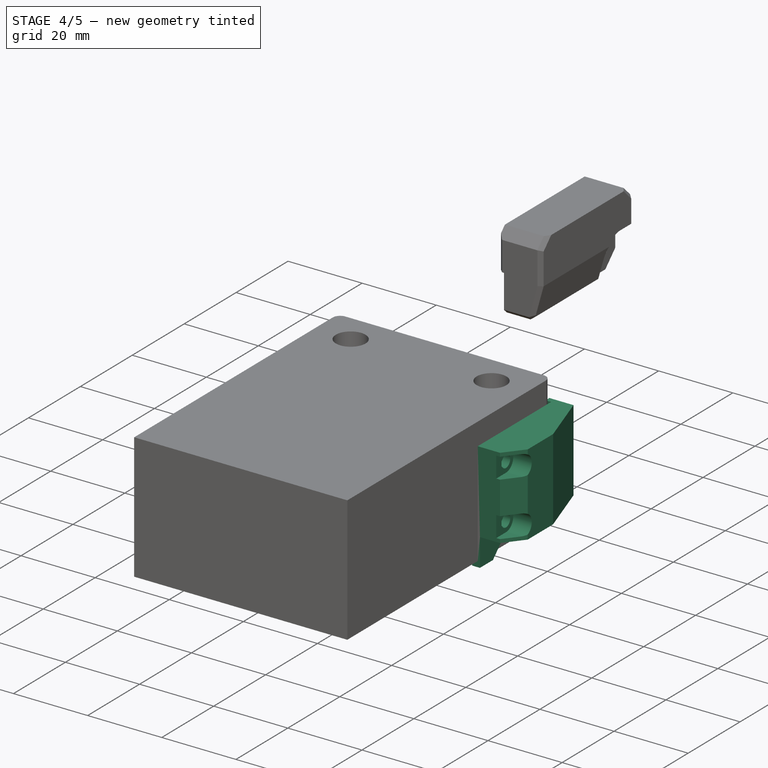
[diagram: stage 4 of 5 — iso view after this stage's code; geometry added in this stage tinted green]
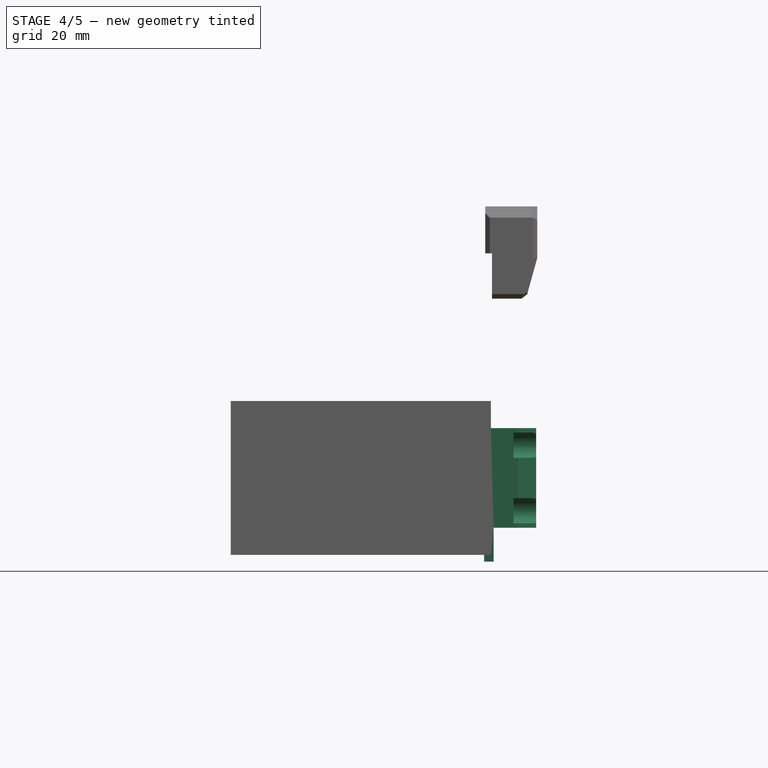
[diagram: stage 4 of 5 — front view after this stage's code; geometry added in this stage tinted green]
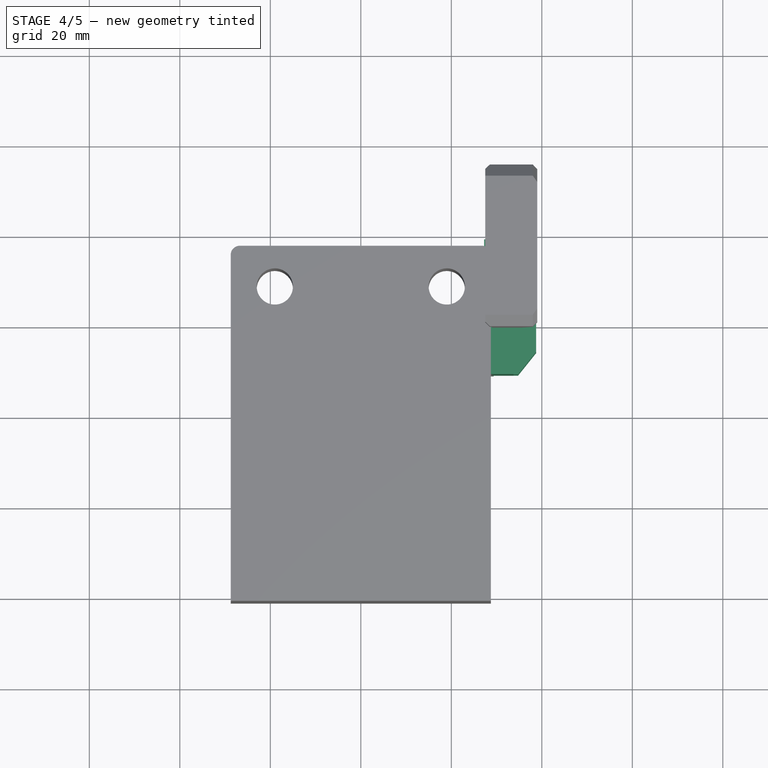
[diagram: stage 4 of 5 — top view after this stage's code; geometry added in this stage tinted green]
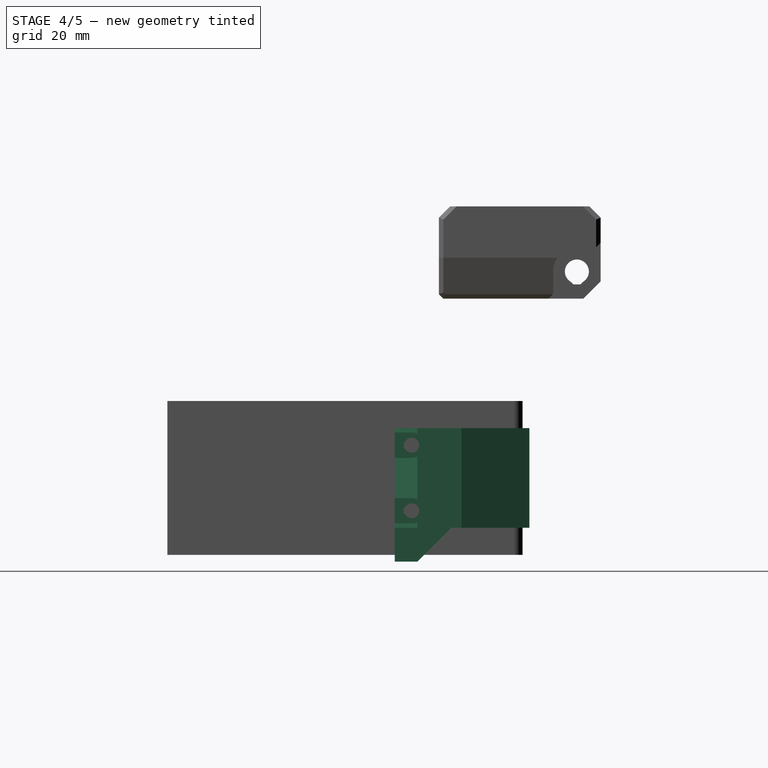
[diagram: stage 4 of 5 — right view after this stage's code; geometry added in this stage tinted green]
FEATURE [PartDesign::ShapeBinder] ShapeBinder008
  Placement = pos=(0,0,6.4e-14) rot=(0,0,-1;1.5708rad)
  Support = -> [Pad002]
  TraceSupport = true
FEATURE [PartDesign::ShapeBinder] ShapeBinder009
  Placement = pos=(32.2,-33.3,46.72) rot=(0.57735,-0.57735,0.57735;4.18879rad)
  Support = -> [Part__Feature001]
  TraceSupport = true
FEATURE [Sketcher::SketchObject] Sketch015
  ExternalGeometry = -> [ShapeBinder008,ShapeBinder009]
  MapMode = 5
  Placement = pos=(28.75,3.2e-15,9.28e-14) rot=(0.57735,0.57735,0.57735;2.0944rad)
  Support = -> [ShapeBinder008]
  sketch-geometry (12):
    g0: LineSegment StartX=-50.75 StartY=11 StartZ=0 EndX=-21 EndY=11 EndZ=0
    g1: LineSegment StartX=-21 StartY=11 StartZ=0 EndX=-21 EndY=-11 EndZ=0
    g2: LineSegment StartX=-21 StartY=-11 StartZ=0 EndX=-50.75 EndY=-11 EndZ=0
    g3: LineSegment StartX=-50.75 StartY=-11 StartZ=0 EndX=-50.75 EndY=11 EndZ=0
    g4: LineSegment [constr] StartX=-38.3 StartY=46.72 StartZ=0 EndX=-38.3 EndY=-11 EndZ=0
    g5: LineSegment [constr] StartX=-38.3 StartY=46.72 StartZ=0 EndX=-23.8 EndY=46.72 EndZ=0
    g6: LineSegment [constr] StartX=-38.3 StartY=32.22 StartZ=0 EndX=-23.8 EndY=32.22 EndZ=0
    g7: LineSegment [constr] StartX=-23.8 StartY=32.22 StartZ=0 EndX=-23.8 EndY=46.72 EndZ=0
    g8: Circle CenterX=-47 CenterY=7.25 CenterZ=0 NormalX=0 NormalY=0 NormalZ=1 AngleXU=0 Radius=1.65
    g9: Circle CenterX=-47 CenterY=-7.25 CenterZ=0 NormalX=0 NormalY=0 NormalZ=1 AngleXU=0 Radius=1.65
    g10: Circle [constr] CenterX=-47 CenterY=7.25 CenterZ=0 NormalX=0 NormalY=0 NormalZ=1 AngleXU=0 Radius=3.75
    g11: Circle [constr] CenterX=-47 CenterY=-7.25 CenterZ=0 NormalX=0 NormalY=0 NormalZ=1 AngleXU=0 Radius=3.75
  constraints (34):
    c: Coincident(g0,g1)
    c: Coincident(g1,g2)
    c: Coincident(g2,g3)
    c: Coincident(g3,g0)
    c: Horizontal(g0)
    c: Horizontal(g2)
    c: Vertical(g1)
    c: Vertical(g3)
    c: PointOnObject(g4,g2)
    c: Vertical(g4)
    c: Coincident(g5,g4)
    c: Coincident(g5,g-4)
    c: Horizontal(g5)
    c: DistanceX(g5,g5) = 14.5
    c: PointOnObject(g6,g4)
    c: Horizontal(g6)
    c: Coincident(g7,g6)
    c: Coincident(g7,g5)
    c: Vertical(g7)
    c: DistanceY(g7,g7) = 14.5
    c: DistanceX(g-3,g0) = 1.5
    c: DistanceY(g0,g-3) = 6
    c: DistanceY(g-3,g1) = 6
    c: Diameter(g8) = 3.3
    c: Equal(g8,g9)
    c: Coincident(g10,g8)
    c: Coincident(g11,g9)
    c: Equal(g10,g11)
    c: Diameter(g10) = 7.5
    c: Tangent(g10,g0)
    c: Tangent(g11,g2)
    c: Tangent(g10,g3)
    c: Tangent(g11,g3)
    c: DistanceX(g8,g0) = 26
FEATURE [PartDesign::Pad] Pad005
  Length = 10
  Length2 = 100
  Placement = pos=(0,0,6.4e-14) rot=(0,0,-1;1.5708rad)
  Profile = -> Sketch015
  Refine = true
  Type = 0
FEATURE [Sketcher::SketchObject] Sketch016
  ExternalGeometry = -> [ShapeBinder008,Pad005]
  MapMode = 5
  Placement = pos=(28.75,1.35e-14,9.19e-14) rot=(0.57735,-0.57735,-0.57735;2.0944rad)
  Support = -> [Pad005]
  sketch-geometry (4):
    g0: LineSegment StartX=21 StartY=11 StartZ=0 EndX=22.5 EndY=11 EndZ=0
    g1: LineSegment StartX=22.5 StartY=11 StartZ=0 EndX=22.5 EndY=-11 EndZ=0
    g2: LineSegment StartX=22.5 StartY=-11 StartZ=0 EndX=21 EndY=-11 EndZ=0
    g3: LineSegment StartX=21 StartY=-11 StartZ=0 EndX=21 EndY=11 EndZ=0
  constraints (10):
    c: Coincident(g0,g1)
    c: Coincident(g1,g2)
    c: Coincident(g2,g3)
    c: Coincident(g3,g0)
    c: Horizontal(g0)
    c: Horizontal(g2)
    c: Vertical(g1)
    c: Coincident(g0,g-4)
    c: PointOnObject(g1,g-3)
    c: Coincident(g2,g-4)
FEATURE [PartDesign::Pad] Pad006
  BaseFeature = -> Pad005
  Length = 1.5
  Length2 = 100
  Placement = pos=(0,0,6.4e-14) rot=(0,0,-1;1.5708rad)
  Profile = -> Sketch016
  Refine = true
  Type = 0
FEATURE [Sketcher::SketchObject] Sketch017
  ExternalGeometry = -> [ShapeBinder008,Pad006]
  MapMode = 5
  Placement = pos=(28.75,1.67e-14,9.19e-14) rot=(0.57735,-0.57735,-0.57735;2.0944rad)
  Support = -> [Pad006]
  sketch-geometry (4):
    g0: LineSegment StartX=50.75 StartY=-11 StartZ=0 EndX=50.75 EndY=-18.5 EndZ=0
    g1: LineSegment StartX=50.75 StartY=-11 StartZ=0 EndX=38.25 EndY=-11 EndZ=0
    g2: LineSegment StartX=38.25 StartY=-11 StartZ=0 EndX=45.75 EndY=-18.5 EndZ=0
    g3: LineSegment StartX=45.75 StartY=-18.5 StartZ=0 EndX=50.75 EndY=-18.5 EndZ=0
  constraints (11):
    c: Vertical(g0)
    c: Coincident(g0,g-4)
    c: Coincident(g1,g0)
    c: PointOnObject(g1,g-4)
    c: Coincident(g2,g1)
    c: Coincident(g3,g2)
    c: Coincident(g3,g0)
    c: Horizontal(g3)
    c: DistanceY(g2,g-3) = 1.5
    c: Angle(g-3,g2) = 2.35619
    c: DistanceX(g3,g3) = 5
FEATURE [PartDesign::Pad] Pad007
  BaseFeature = -> Pad006
  Length = 0.6
  Length2 = 100
  Placement = pos=(0,0,6.4e-14) rot=(0,0,-1;1.5708rad)
  Profile = -> Sketch017
  Refine = true
  Reversed = true
  Type = 0
FEATURE [Sketcher::SketchObject] Sketch018
  ExternalGeometry = -> [ShapeBinder008,Pad007]
  MapMode = 5
  Placement = pos=(28.75,2e-14,8.91e-14) rot=(0.57735,-0.57735,-0.57735;2.0944rad)
  Support = -> [Pad007]
  sketch-geometry (4):
    g0: LineSegment StartX=50.75 StartY=-18.5 StartZ=0 EndX=50.75 EndY=-17 EndZ=0
    g1: LineSegment StartX=50.75 StartY=-17 StartZ=0 EndX=44.25 EndY=-17 EndZ=0
    g2: LineSegment StartX=44.25 StartY=-17 StartZ=0 EndX=45.75 EndY=-18.5 EndZ=0
    g3: LineSegment StartX=45.75 StartY=-18.5 StartZ=0 EndX=50.75 EndY=-18.5 EndZ=0
  constraints (10):
    c: Coincident(g0,g-4)
    c: PointOnObject(g0,g-4)
    c: Coincident(g1,g0)
    c: Horizontal(g1)
    c: Coincident(g2,g1)
    c: Coincident(g2,g-5)
    c: Coincident(g3,g2)
    c: Coincident(g3,g0)
    c: PointOnObject(g1,g-5)
    c: PointOnObject(g0,g-3)
FEATURE [PartDesign::Pad] Pad008
  BaseFeature = -> Pad007
  Length = 10
  Length2 = 100
  Placement = pos=(0,0,6.4e-14) rot=(0,0,-1;1.5708rad)
  Profile = -> Sketch018
  Refine = true
  Type = 3
  UpToFace = -> Pad007 [Face6]
FEATURE [PartDesign::Chamfer] Chamfer006
  Base = -> Pad008 [Edge33]
  BaseFeature = -> Pad008
  Placement = pos=(0,0,6.4e-14) rot=(0,0,-1;1.5708rad)
  Size = 1.5
FEATURE [Sketcher::SketchObject] Sketch019
  ExternalGeometry = -> [Chamfer006]
  MapMode = 5
  Placement = pos=(38.75,3.11e-14,1.015e-13) rot=(0.57735,0.57735,0.57735;2.0944rad)
  Support = -> [Chamfer006]
  sketch-geometry (5):
    g0: ArcOfCircle CenterX=-47 CenterY=-7.25 CenterZ=0 NormalX=0 NormalY=0 NormalZ=1 AngleXU=0 Radius=2.8 StartAngle=4.71239 EndAngle=7.85398
    g1: LineSegment StartX=-47 StartY=-4.45 StartZ=0 EndX=-50.75 EndY=-4.45 EndZ=0
    g2: LineSegment StartX=-50.75 StartY=-4.45 StartZ=0 EndX=-50.75 EndY=-10.05 EndZ=0
    g3: LineSegment StartX=-50.75 StartY=-10.05 StartZ=0 EndX=-47 EndY=-10.05 EndZ=0
    g4: LineSegment [constr] StartX=-47 StartY=-4.45 StartZ=0 EndX=-47 EndY=-10.05 EndZ=0
  constraints (14):
    c: Coincident(g0,g-3)
    c: Coincident(g1,g2)
    c: Coincident(g2,g3)
    c: Horizontal(g1)
    c: Horizontal(g3)
    c: Vertical(g2)
    c: Coincident(g1,g0)
    c: PointOnObject(g2,g-4)
    c: Coincident(g3,g0)
    c: Coincident(g4,g0)
    c: Vertical(g4)
    c: PointOnObject(g0,g4)
    c: Diameter(g0) = 5.6
    c: Coincident(g4,g0)
FEATURE [PartDesign::Pocket] Pocket009
  BaseFeature = -> Chamfer006
  Length = 0
  Length2 = 100
  Offset = -5
  Placement = pos=(0,0,6.4e-14) rot=(0,0,-1;1.5708rad)
  Profile = -> Sketch019
  Refine = true
  Type = 3
  UpToFace = -> Chamfer006 [Face5]
FEATURE [PartDesign::Mirrored] Mirrored002
  BaseFeature = -> Pocket009
  MirrorPlane = -> XY_Plane010
  Originals = -> [Pocket009]
  Placement = pos=(0,0,6.4e-14) rot=(0,0,-1;1.5708rad)
  Refine = true
FEATURE [Sketcher::SketchObject] Sketch020
  ExternalGeometry = -> [Mirrored002]
  MapMode = 5
  Placement = pos=(33.75,3.1e-14,3.45e-14) rot=(0.57735,0.57735,0.57735;2.0944rad)
  Support = -> [Mirrored002]
  sketch-geometry (5):
    g0: LineSegment StartX=-47.9833 StartY=8.575 StartZ=0 EndX=-48.75 EndY=7.8083 EndZ=0
    g1: LineSegment StartX=-48.75 StartY=7.8083 StartZ=0 EndX=-48.75 EndY=6.6917 EndZ=0
    g2: LineSegment StartX=-48.75 StartY=6.6917 StartZ=0 EndX=-47.9833 EndY=5.925 EndZ=0
    g3: LineSegment StartX=-47.9833 StartY=5.925 StartZ=0 EndX=-47.9833 EndY=8.575 EndZ=0
    g4: LineSegment [constr] StartX=-48.65 StartY=7.9083 StartZ=0 EndX=-48.65 EndY=6.5917 EndZ=0
  constraints (16):
    c: PointOnObject(g0,g-3)
    c: Coincident(g1,g0)
    c: Coincident(g2,g1)
    c: Coincident(g3,g2)
    c: Vertical(g3)
    c: PointOnObject(g4,g2)
    c: PointOnObject(g4,g0)
    c: Vertical(g4)
    c: Tangent(g4,g-3)
    c: Coincident(g3,g0)
    c: Vertical(g1)
    c: DistanceY(g3,g3) = 2.65
    c: DistanceX(g0,g4) = 0.1
    c: Angle(g1,g0) = 2.35619
    c: Angle(g2,g1) = 2.35619
    c: PointOnObject(g2,g-3)
FEATURE [PartDesign::Pocket] Pocket010
  BaseFeature = -> Mirrored002
  Length = 5
  Length2 = 100
  Placement = pos=(0,0,6.4e-14) rot=(0,0,-1;1.5708rad)
  Profile = -> Sketch020
  Refine = true
  Type = 1
FEATURE [PartDesign::Mirrored] Mirrored003
  BaseFeature = -> Pocket010
  MirrorPlane = -> XY_Plane010
  Originals = -> [Pocket010]
  Placement = pos=(0,0,6.4e-14) rot=(0,0,-1;1.5708rad)
  Refine = true
FEATURE [Sketcher::SketchObject] Sketch021
  ExternalGeometry = -> [Mirrored003]
  MapMode = 5
  Placement = pos=(-1.12e-14,1.04e-14,11) rot=(0,0,-1;1.5708rad)
  Support = -> [Mirrored003]
  sketch-geometry (3):
    g0: LineSegment StartX=45.75 StartY=38.75 StartZ=0 EndX=50.75 EndY=34.75 EndZ=0
    g1: LineSegment StartX=50.75 StartY=34.75 StartZ=0 EndX=50.75 EndY=38.75 EndZ=0
    g2: LineSegment StartX=50.75 StartY=38.75 StartZ=0 EndX=45.75 EndY=38.75 EndZ=0
  constraints (8):
    c: PointOnObject(g0,g-4)
    c: PointOnObject(g0,g-3)
    c: Coincident(g1,g0)
    c: Coincident(g2,g0)
    c: Coincident(g2,g-4)
    c: Coincident(g1,g-4)
    c: DistanceX(g2,g2) = 5
    c: DistanceY(g1,g1) = 4
FEATURE [PartDesign::Pocket] Pocket011
  BaseFeature = -> Mirrored003
  Length = 5
  Length2 = 100
  Placement = pos=(0,0,6.4e-14) rot=(0,0,-1;1.5708rad)
  Profile = -> Sketch021
  Refine = true
  Type = 1
FEATURE [Sketcher::SketchObject] Sketch022
  ExternalGeometry = -> [Pocket011]
  MapMode = 5
  Placement = pos=(-1.12e-14,1.04e-14,11) rot=(0,0,-1;1.5708rad)
  Support = -> [Pocket011]
  sketch-geometry (3):
    g0: LineSegment StartX=21 StartY=33.75 StartZ=0 EndX=36 EndY=38.75 EndZ=0
    g1: LineSegment StartX=36 StartY=38.75 StartZ=0 EndX=21 EndY=38.75 EndZ=0
    g2: LineSegment StartX=21 StartY=38.75 StartZ=0 EndX=21 EndY=33.75 EndZ=0
  constraints (8):
    c: PointOnObject(g0,g-4)
    c: PointOnObject(g0,g-3)
    c: Coincident(g1,g0)
    c: Coincident(g2,g1)
    c: Coincident(g2,g0)
    c: Coincident(g1,g-4)
    c: DistanceX(g1,g1) = 15
    c: DistanceY(g2,g2) = 5
FEATURE [PartDesign::Pocket] Pocket012
  BaseFeature = -> Pocket011
  Length = 5
  Length2 = 100
  Placement = pos=(0,0,6.4e-14) rot=(0,0,-1;1.5708rad)
  Profile = -> Sketch022
  Refine = true
  Type = 1
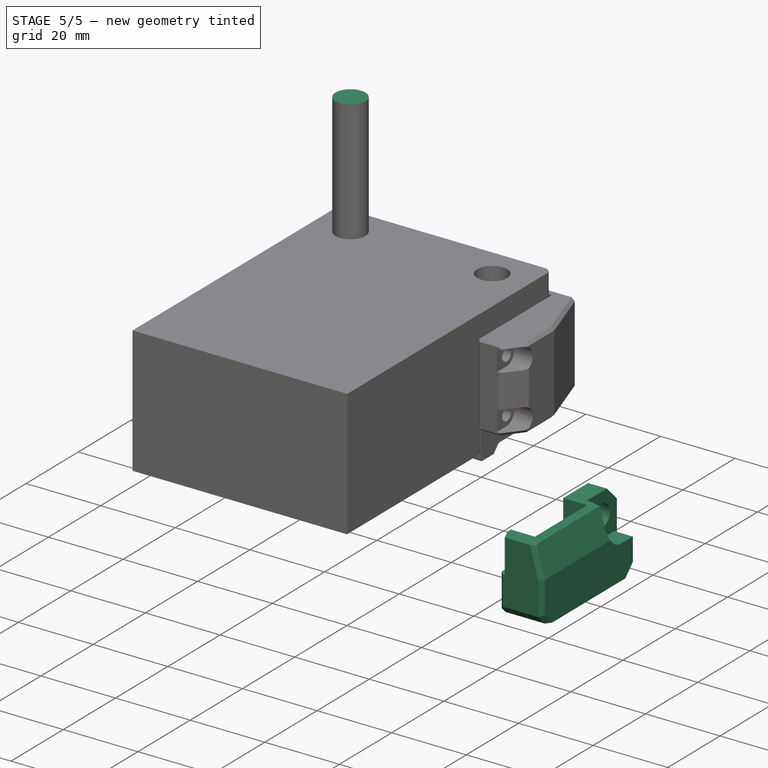
[diagram: stage 5 of 5 — iso view after this stage's code; geometry added in this stage tinted green]
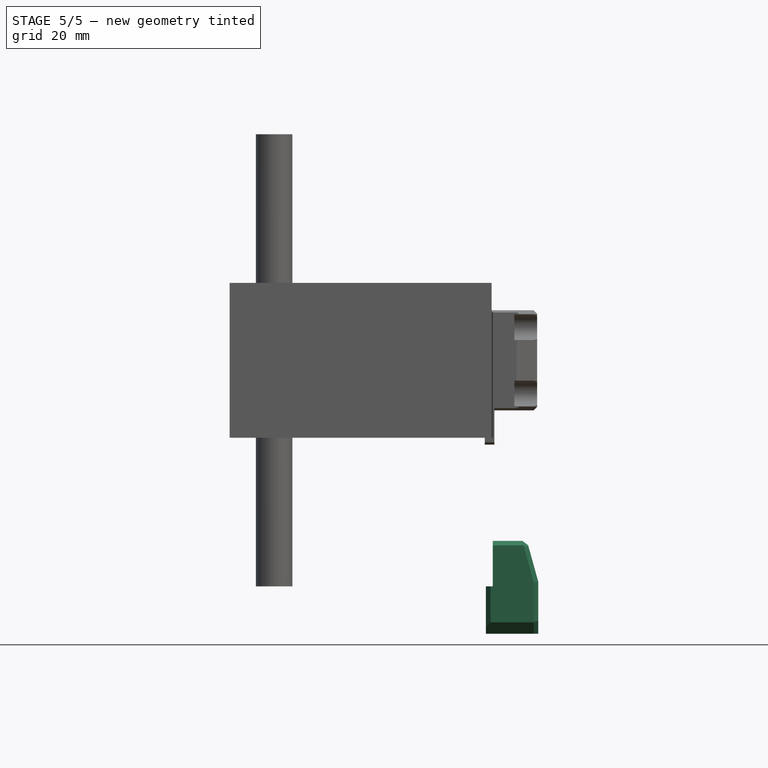
[diagram: stage 5 of 5 — front view after this stage's code; geometry added in this stage tinted green]
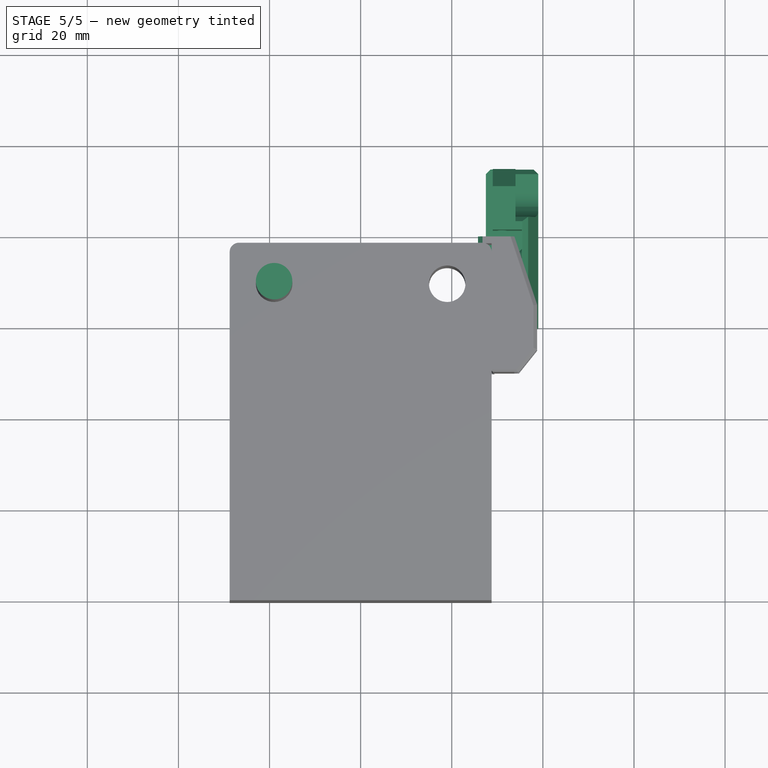
[diagram: stage 5 of 5 — top view after this stage's code; geometry added in this stage tinted green]
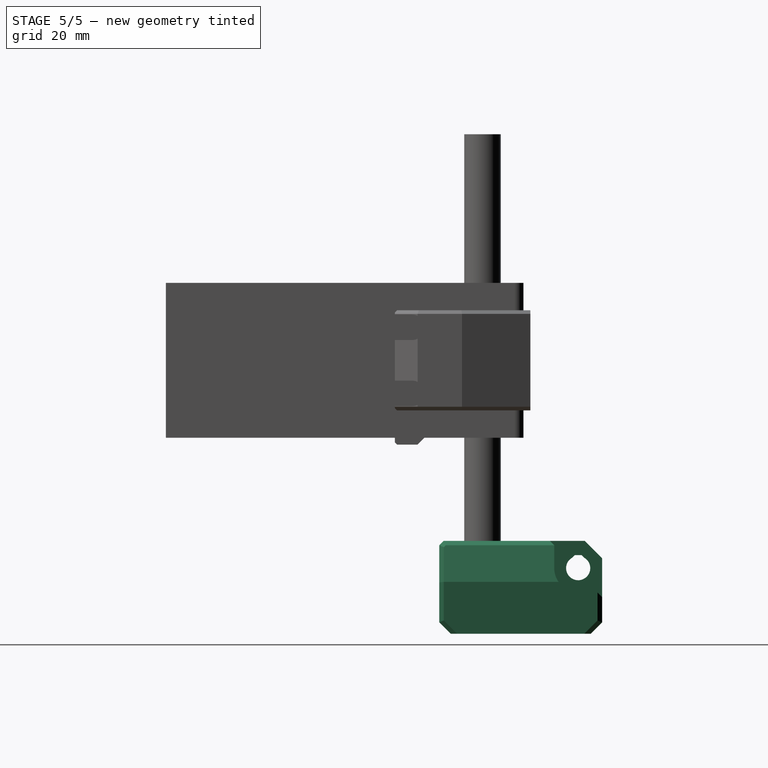
[diagram: stage 5 of 5 — right view after this stage's code; geometry added in this stage tinted green]
FEATURE [PartDesign::ShapeBinder] ShapeBinder
  Placement = pos=(0,0,0) rot=(0.57735,0.57735,0.57735;2.0944rad)
  Support = -> [Mirrored]
  TraceSupport = true
FEATURE [Sketcher::SketchObject] Sketch004
  ExternalGeometry = -> [ShapeBinder]
  MapMode = 5
  Placement = pos=(1.39e-14,-2.18e-14,-49.625) rot=(0.707107,0.707107,0;3.14159rad)
  Support = -> [ShapeBinder]
  sketch-geometry (1):
    g0: Circle CenterX=-31.5 CenterY=19 CenterZ=0 NormalX=0 NormalY=0 NormalZ=1 AngleXU=0 Radius=4
  constraints (2):
    c: Coincident(g0,g-3)
    c: Equal(g-3,g0)
FEATURE [PartDesign::ShapeBinder] ShapeBinder001
  Placement = pos=(0,0,0) rot=(0.57735,0.57735,0.57735;2.0944rad)
  Support = -> [Mirrored]
  TraceSupport = true
FEATURE [PartDesign::Pad] Pad001
  Length = 10
  Length2 = 100
  Placement = pos=(0,0,0) rot=(0.57735,0.57735,0.57735;2.0944rad)
  Profile = -> Sketch004
  Refine = true
  Type = 3
  UpToFace = -> ShapeBinder001 [Face1]
FEATURE [PartDesign::Body] Body001  label="zrod"
  Group = -> [ShapeBinder,Sketch004,ShapeBinder001,Pad001]
  Origin = -> Origin002
  Tip = -> Pad001
FEATURE [Part::Mirroring] Part__Mirroring  label="zrod_l"
  Base = (0,0,0)
  Normal = (1,0,0)
  Source = -> Body001
FEATURE [PartDesign::Chamfer] Chamfer007
  Base = -> Pocket012 [Edge13]
  BaseFeature = -> Pocket012
  Placement = pos=(0,0,6.4e-14) rot=(0,0,-1;1.5708rad)
  Size = 0.5
FEATURE [PartDesign::Chamfer] Chamfer008
  Base = -> Chamfer007 [Edge11]
  BaseFeature = -> Chamfer007
  Placement = pos=(0,0,6.4e-14) rot=(0,0,-1;1.5708rad)
  Size = 0.5
FEATURE [PartDesign::Chamfer] Chamfer009
  Base = -> Chamfer008 [Edge20,Edge90,Edge92,Edge111,Edge97,Edge86]
  BaseFeature = -> Chamfer008
  Placement = pos=(0,0,6.4e-14) rot=(0,0,-1;1.5708rad)
  Size = 0.8
FEATURE [PartDesign::Chamfer] Chamfer010
  Base = -> Chamfer009 [Edge9]
  BaseFeature = -> Chamfer009
  Placement = pos=(0,0,6.4e-14) rot=(0,0,-1;1.5708rad)
  Size = 0.5
FEATURE [PartDesign::Chamfer] Chamfer011
  Base = -> Chamfer010 [Edge16]
  BaseFeature = -> Chamfer010
  Placement = pos=(0,0,6.4e-14) rot=(0,0,-1;1.5708rad)
  Size = 0.3
FEATURE [PartDesign::Chamfer] Chamfer012
  Base = -> Chamfer011 [Edge10]
  BaseFeature = -> Chamfer011
  Placement = pos=(0,0,6.4e-14) rot=(0,0,-1;1.5708rad)
  Size = 0.5
FEATURE [Sketcher::SketchObject] Sketch030
  ExternalGeometry = -> [Chamfer012]
  MapMode = 5
  Placement = pos=(27.25,2.12e-14,9.04e-14) rot=(0.57735,-0.57735,-0.57735;2.0944rad)
  Support = -> [Chamfer012]
  sketch-geometry (4):
    g0: LineSegment StartX=21 StartY=11 StartZ=0 EndX=22.5 EndY=11 EndZ=0
    g1: LineSegment StartX=22.5 StartY=11 StartZ=0 EndX=22.5 EndY=-11 EndZ=0
    g2: LineSegment StartX=22.5 StartY=-11 StartZ=0 EndX=21 EndY=-11 EndZ=0
    g3: LineSegment StartX=21 StartY=-11 StartZ=0 EndX=21 EndY=11 EndZ=0
  constraints (10):
    c: Coincident(g0,g1)
    c: Coincident(g1,g2)
    c: Coincident(g2,g3)
    c: Coincident(g3,g0)
    c: Horizontal(g0)
    c: Horizontal(g2)
    c: Vertical(g1)
    c: Vertical(g3)
    c: Coincident(g0,g-3)
    c: Coincident(g1,g-4)
FEATURE [PartDesign::Pad] Pad012
  BaseFeature = -> Chamfer012
  Length = 1.5
  Length2 = 100
  Placement = pos=(0,0,6.4e-14) rot=(0,0,-1;1.5708rad)
  Profile = -> Sketch030
  Refine = true
  Type = 0
FEATURE [PartDesign::Chamfer] Chamfer019
  Base = -> Pad012 [Edge130,Edge132]
  BaseFeature = -> Pad012
  Placement = pos=(0,0,6.4e-14) rot=(0,0,-1;1.5708rad)
  Size = 1
FEATURE [PartDesign::Body] Body003  label="z_positive"
  Group = -> [ShapeBinder004,ShapeBinder005,Sketch007,Pad003,ShapeBinder006,Sketch008,Pocket004,Sketch009,Pocket005,Sketch010,Pocket006,Sketch011,Pocket007,ShapeBinder007,DatumPlane001,Sketch012,Revolution,LinearPattern,Sketch013,Pad004,Sketch014,Pocket008,Sketch023,Pad009,Sketch024,Pocket013,Sketch025,Pad010,Sketch026,Pocket014,Sketch027,Pocket015,Sketch028,Pocket016,Sketch029,Pad011,Chamfer,Chamfer014,+5 more]
  Origin = -> Origin009
  Tip = -> Chamfer020
FEATURE [Part::Mirroring] Part__Mirroring001  label="z_negative"
  Base = (0,0,0)
  Normal = (0,0,1)
  Source = -> Body003
FEATURE [App::Part] Part003  label="limit mounts"
  Group = -> [Body003,Part__Mirroring001,Body004]
  Origin = -> Origin008
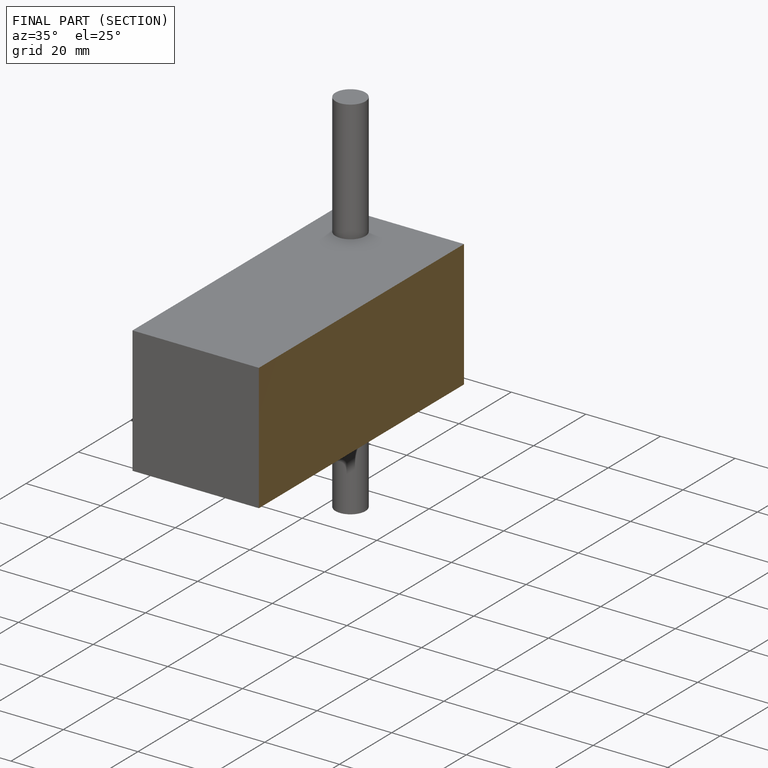
[diagram: finished part — half-section view (interior)]
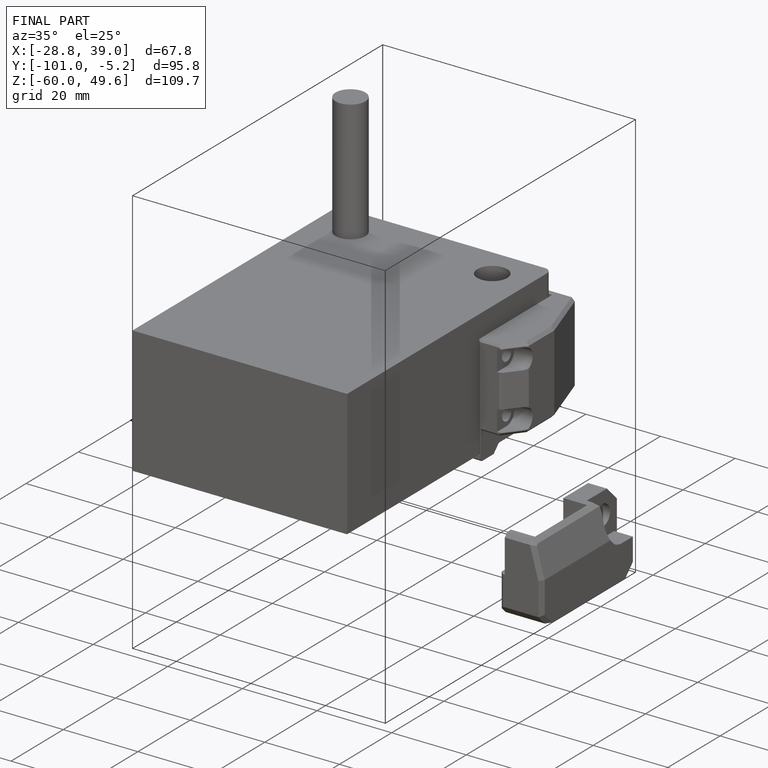
[diagram: finished part — iso view with bounding-box wireframe]
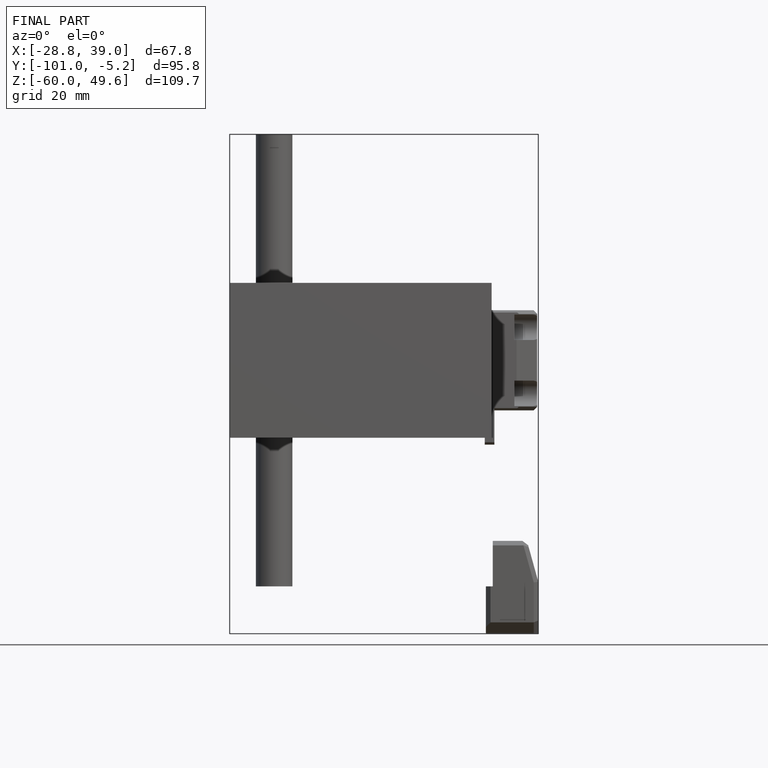
[diagram: finished part — front view with bounding-box wireframe]
